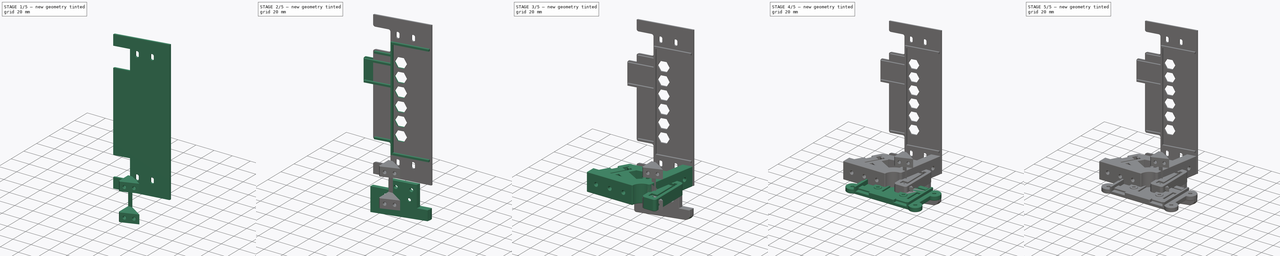
[diagram: build sequence overview — one tinted view per stage of 5, left to right]
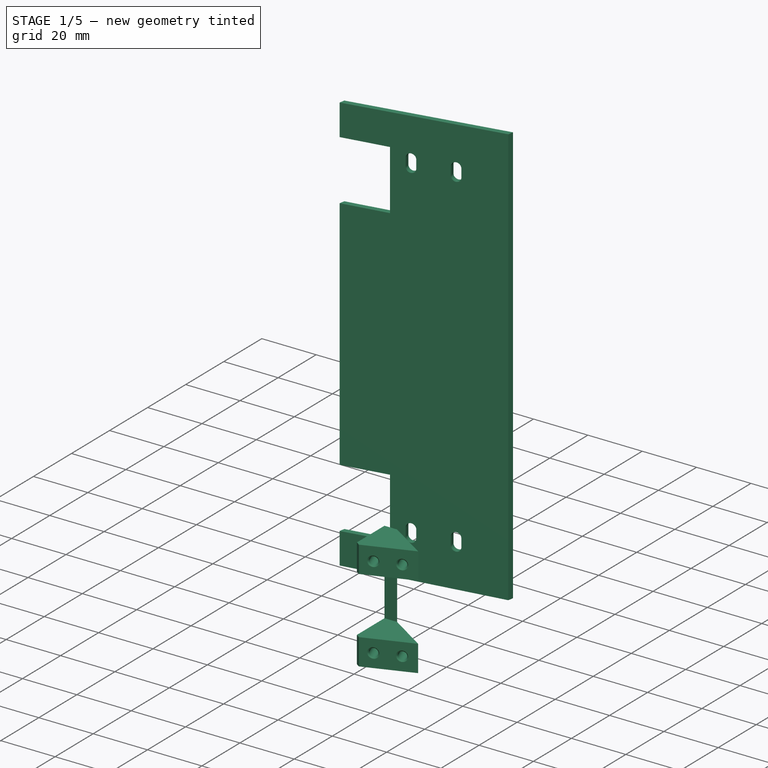
[diagram: stage 1 of 5 — iso view after this stage's code; geometry added in this stage tinted green]
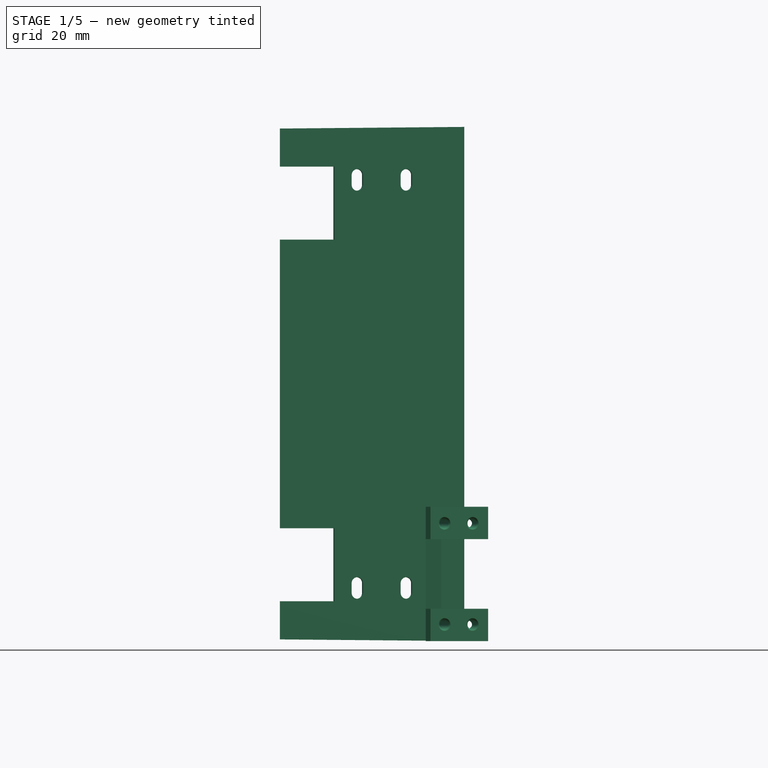
[diagram: stage 1 of 5 — front view after this stage's code; geometry added in this stage tinted green]
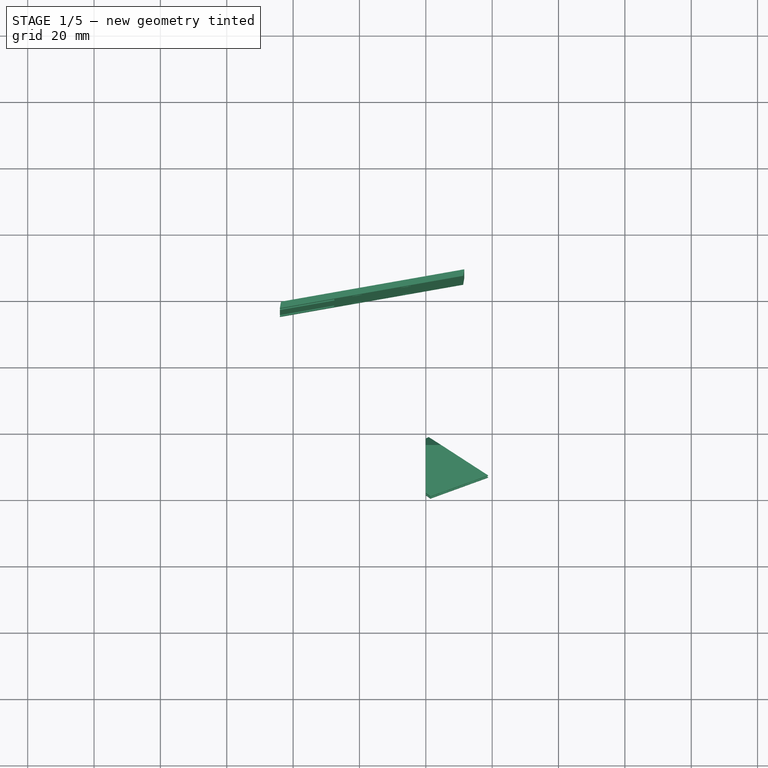
[diagram: stage 1 of 5 — top view after this stage's code; geometry added in this stage tinted green]
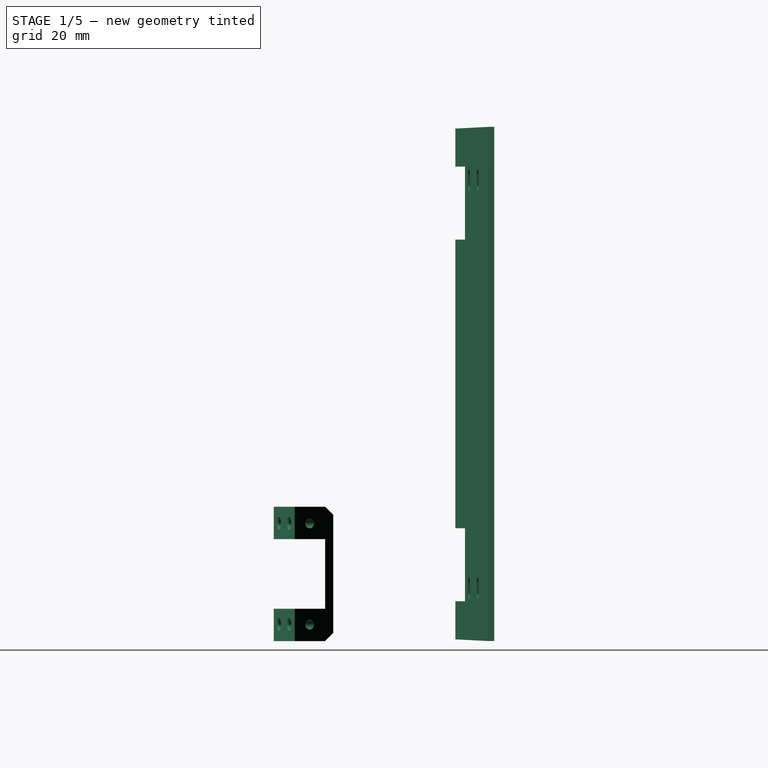
[diagram: stage 1 of 5 — right view after this stage's code; geometry added in this stage tinted green]
FCSTD DOCUMENT  (FreeCAD 0.19R24291 (Git))
Label: din-tray
License: Other
LicenseURL: GPL3
objects: Sketcher::SketchObject×32, PartDesign::Pocket×18, PartDesign::Pad×14, PartDesign::Chamfer×14, PartDesign::Body×10, PartDesign::Fillet×9, Part::Feature×6, Spreadsheet::Sheet×1, Part::MultiFuse×1, PartDesign::LinearPattern×1, PartDesign::Plane×1
note: 161 computed .brp shape members not serialized (recipe doc carries the construction recipe); baked Part::Feature solids carry a one-line shape summary decoded from their .brp

FEATURE [PartDesign::Body] Body004007  label="side-lid"
  Group = -> [Sketch016,Pad009,Sketch017,Pocket007,Sketch018,Pocket008,Sketch019,Pocket009,Sketch020,Pocket010,Fillet006,Fillet007,Chamfer010]
  Origin = -> Origin007
  Placement = pos=(0,0,22) rot=(0,0,1;0rad)
  Tip = -> Chamfer010
FEATURE [Sketcher::SketchObject] Sketch021
  FullyConstrained = true
  MapMode = 5
  Support = -> [XY_Plane008]
  sketch-geometry (4):
    g0: LineSegment StartX=-44 StartY=55.2579 StartZ=0 EndX=11.25 EndY=65 EndZ=0
    g1: LineSegment StartX=11.25 StartY=65 StartZ=0 EndX=11.5973 EndY=66.9696 EndZ=0
    g2: LineSegment StartX=11.5973 StartY=66.9696 StartZ=0 EndX=-43.6527 EndY=57.2275 EndZ=0
    g3: LineSegment StartX=-43.6527 StartY=57.2275 StartZ=0 EndX=-44 EndY=55.2579 EndZ=0
  constraints (12):
    c: Coincident(g0,g1)
    c: Coincident(g1,g2)
    c: Coincident(g2,g3)
    c: Coincident(g3,g0)
    c: Angle(g-1,g1) = 1.39626
    c: Angle(g-1,g0) = 0.174533
    c: Parallel(g2,g0)
    c: Parallel(g3,g1)
    c: DistanceX(g-1,g0) = 11.25
    c: DistanceY(g-1,g0) = 65
    c: Distance(g3) = 2
    c: DistanceX(g0,g-1) = 44
FEATURE [PartDesign::Pad] Pad010
  Direction = (1,1,1)
  Length = 155
  Length2 = 100
  Profile = -> Sketch021
  Type = 0
  expr: Length = <<args>>.lid_width
FEATURE [Sketcher::SketchObject] Sketch022
  FullyConstrained = true
  MapMode = 5
  Placement = pos=(-11.1028,62.967,0) rot=(-0.061746,0.705758,0.705758;3.26493rad)
  Support = -> [Pad010]
  expr: Constraints[39] = <<args>>.lid_width - 14.5
  sketch-geometry (16):
    g0: ArcOfCircle CenterX=-5 CenterY=14.5 CenterZ=0 NormalX=0 NormalY=0 NormalZ=1 AngleXU=0 Radius=1.75 StartAngle=3.14159 EndAngle=6.28319
    g1: ArcOfCircle CenterX=-5 CenterY=17.5 CenterZ=0 NormalX=0 NormalY=0 NormalZ=1 AngleXU=0 Radius=1.75 StartAngle=0 EndAngle=3.14159
    g2: LineSegment StartX=-3.25 StartY=14.5 StartZ=0 EndX=-3.25 EndY=17.5 EndZ=0
    g3: LineSegment StartX=-6.75 StartY=14.5 StartZ=0 EndX=-6.75 EndY=17.5 EndZ=0
    g4: ArcOfCircle CenterX=10 CenterY=14.5 CenterZ=0 NormalX=0 NormalY=0 NormalZ=1 AngleXU=0 Radius=1.75 StartAngle=3.14159 EndAngle=6.28319
    g5: ArcOfCircle CenterX=10 CenterY=17.5 CenterZ=0 NormalX=0 NormalY=0 NormalZ=1 AngleXU=0 Radius=1.75 StartAngle=2e-16 EndAngle=3.14159
    g6: LineSegment StartX=11.75 StartY=14.5 StartZ=0 EndX=11.75 EndY=17.5 EndZ=0
    g7: LineSegment StartX=8.25 StartY=14.5 StartZ=0 EndX=8.25 EndY=17.5 EndZ=0
    g8: ArcOfCircle CenterX=-5 CenterY=140.5 CenterZ=0 NormalX=0 NormalY=0 NormalZ=1 AngleXU=0 Radius=1.75 StartAngle=6.2e-15 EndAngle=3.14159
    g9: ArcOfCircle CenterX=-5 CenterY=137.5 CenterZ=0 NormalX=0 NormalY=0 NormalZ=1 AngleXU=0 Radius=1.75 StartAngle=3.14159 EndAngle=6.28319
    g10: LineSegment StartX=-6.75 StartY=140.5 StartZ=0 EndX=-6.75 EndY=137.5 EndZ=0
    g11: LineSegment StartX=-3.25 StartY=140.5 StartZ=0 EndX=-3.25 EndY=137.5 EndZ=0
    g12: ArcOfCircle CenterX=10 CenterY=140.5 CenterZ=0 NormalX=0 NormalY=0 NormalZ=1 AngleXU=0 Radius=1.75 StartAngle=-7.1e-15 EndAngle=3.14159
    g13: ArcOfCircle CenterX=10 CenterY=137.5 CenterZ=0 NormalX=0 NormalY=0 NormalZ=1 AngleXU=0 Radius=1.75 StartAngle=3.14159 EndAngle=6.28319
    g14: LineSegment StartX=8.25 StartY=140.5 StartZ=0 EndX=8.25 EndY=137.5 EndZ=0
    g15: LineSegment StartX=11.75 StartY=140.5 StartZ=0 EndX=11.75 EndY=137.5 EndZ=0
  constraints (40):
    c: Tangent(g0,g3) = 1.5708
    c: Tangent(g0,g2) = -1.5708
    c: Tangent(g2,g1) = -1.5708
    c: Tangent(g3,g1) = 1.5708
    c: Vertical(g2)
    c: Equal(g0,g1)
    c: Tangent(g4,g7) = 1.5708
    c: Tangent(g4,g6) = -1.5708
    c: Tangent(g6,g5) = -1.5708
    c: Tangent(g7,g5) = 1.5708
    c: Vertical(g6)
    c: Equal(g4,g5)
    c: Tangent(g8,g11) = 1.5708
    c: Tangent(g8,g10) = -1.5708
    c: Tangent(g10,g9) = -1.5708
    c: Tangent(g11,g9) = 1.5708
    c: Vertical(g10)
    c: Equal(g8,g9)
    c: Tangent(g12,g15) = 1.5708
    c: Tangent(g12,g14) = -1.5708
    c: Tangent(g14,g13) = -1.5708
    c: Tangent(g15,g13) = 1.5708
    c: Vertical(g14)
    c: Equal(g12,g13)
    c: Horizontal(g0,g4)
    c: Horizontal(g1,g5)
    c: Horizontal(g9,g13)
    c: Horizontal(g8,g12)
    c: Vertical(g1,g9)
    c: Vertical(g13,g5)
    c: DistanceX(g0,g-1) = 5
    c: DistanceX(g-1,g4) = 10
    c: DistanceY(g0,g1) = 3
    c: DistanceY(g9,g8) = 3
    c: Radius(g1) = 1.75
    c: Radius(g5) = 1.75
    c: Radius(g8) = 1.75
    c: Radius(g12) = 1.75
    c: DistanceY(g-1,g0) = 14.5
    c: DistanceY(g-1,g8) = 140.5
FEATURE [PartDesign::Pocket] Pocket011
  BaseFeature = -> Pad010
  Length = 5
  Length2 = 100
  Profile = -> Sketch022
  Type = 1
FEATURE [Sketcher::SketchObject] Sketch023
  FullyConstrained = true
  MapMode = 5
  Placement = pos=(-11.1028,62.967,0) rot=(-0.061746,0.705758,0.705758;3.26493rad)
  Support = -> [Pocket011]
  expr: Constraints[15] = <<args>>.lid_width
  expr: Constraints[14] = <<args>>.lid_right_angle
  expr: Constraints[6] = <<args>>.lid_left_angle
  sketch-geometry (6):
    g0: LineSegment StartX=-25 StartY=0 StartZ=0 EndX=35 EndY=0.523612 EndZ=0
    g1: LineSegment StartX=35 StartY=0.523612 StartZ=0 EndX=35 EndY=0 EndZ=0
    g2: LineSegment StartX=35 StartY=0 StartZ=0 EndX=-25 EndY=0 EndZ=0
    g3: LineSegment StartX=-25 StartY=155 StartZ=0 EndX=35 EndY=155 EndZ=0
    g4: LineSegment StartX=35 StartY=155 StartZ=0 EndX=35 EndY=154.476 EndZ=0
    g5: LineSegment StartX=35 StartY=154.476 StartZ=0 EndX=-25 EndY=155 EndZ=0
  constraints (18):
    c: Coincident(g0,g1)
    c: Coincident(g1,g2)
    c: Coincident(g2,g0)
    c: Vertical(g1)
    c: Horizontal(g2)
    c: DistanceX(g0,g-1) = 25
    c: Angle(g2,g0) = 0.00872665
    c: DistanceY(g0,g-1) = 0
    c: DistanceX(g-1,g1) = 35
    c: Coincident(g3,g4)
    c: Coincident(g4,g5)
    c: Coincident(g5,g3)
    c: Horizontal(g3)
    c: Vertical(g4)
    c: Angle(g5,g3) = 0.00872665
    c: DistanceY(g0,g3) = 155
    c: DistanceX(g3,g-1) = 25
    c: DistanceX(g-1,g4) = 35
FEATURE [PartDesign::Pocket] Pocket012
  BaseFeature = -> Pocket011
  Length = 5
  Length2 = 100
  Profile = -> Sketch023
  Type = 0
FEATURE [Sketcher::SketchObject] Sketch024
  FullyConstrained = true
  MapMode = 5
  Placement = pos=(-11.1028,62.967,0) rot=(-0.061746,0.705758,0.705758;3.26493rad)
  Support = -> [Pocket012]
  expr: Constraints[10] = <<args>>.lid_width - 12
  sketch-geometry (8):
    g0: LineSegment StartX=34 StartY=12 StartZ=0 EndX=17 EndY=12 EndZ=0
    g1: LineSegment StartX=17 StartY=12 StartZ=0 EndX=17 EndY=34 EndZ=0
    g2: LineSegment StartX=17 StartY=121 StartZ=0 EndX=17 EndY=143 EndZ=0
    g3: LineSegment StartX=17 StartY=143 StartZ=0 EndX=34 EndY=143 EndZ=0
    g4: LineSegment StartX=17 StartY=34 StartZ=0 EndX=34 EndY=34 EndZ=0
    g5: LineSegment StartX=34 StartY=34 StartZ=0 EndX=34 EndY=12 EndZ=0
    g6: LineSegment StartX=17 StartY=121 StartZ=0 EndX=34 EndY=121 EndZ=0
    g7: LineSegment StartX=34 StartY=121 StartZ=0 EndX=34 EndY=143 EndZ=0
  constraints (24):
    c: Horizontal(g0)
    c: Coincident(g0,g1)
    c: Vertical(g1)
    c: Vertical(g2)
    c: Coincident(g2,g3)
    c: Horizontal(g3)
    c: DistanceX(g-1,g0) = 17
    c: Vertical(g1,g2)
    c: DistanceY(g1,g1) = 22
    c: DistanceY(g-1,g0) = 12
    c: DistanceY(g-1,g2) = 143
    c: DistanceY(g2,g2) = 22
    c: DistanceX(g-1,g0) = 34
    c: Coincident(g1,g4)
    c: Horizontal(g4)
    c: Coincident(g4,g5)
    c: Coincident(g5,g0)
    c: Vertical(g5)
    c: Coincident(g2,g6)
    c: Horizontal(g6)
    c: Coincident(g6,g7)
    c: Coincident(g7,g3)
    c: Vertical(g7)
    c: Vertical(g6,g4)
FEATURE [PartDesign::Pocket] Pocket013
  BaseFeature = -> Pocket012
  Length = 5
  Length2 = 100
  Profile = -> Sketch024
  Type = 0
FEATURE [PartDesign::Body] Body004008  label="top-lid"
  Group = -> [Sketch021,Pad010,Sketch022,Pocket011,Sketch023,Pocket012,Sketch024,Pocket013,Fillet008,Sketch025,Pad011,Fillet009,Sketch026,Pad012,Sketch028,Pocket016,LinearPattern001,Chamfer011]
  Origin = -> Origin008
  Tip = -> Chamfer011
FEATURE [Sketcher::SketchObject] Sketch029
  FullyConstrained = true
  MapMode = 5
  Support = -> [XY_Plane009]
  sketch-geometry (3):
    g0: LineSegment StartX=0 StartY=0 StartZ=0 EndX=0 EndY=19 EndZ=0
    g1: LineSegment StartX=0 StartY=0 StartZ=0 EndX=18.7939 EndY=6.8404 EndZ=0
    g2: LineSegment StartX=0 StartY=19 StartZ=0 EndX=18.7939 EndY=6.8404 EndZ=0
  constraints (8):
    c: Coincident(g0,g-1)
    c: PointOnObject(g0,g-2)
    c: Coincident(g1,g0)
    c: Coincident(g2,g0)
    c: Coincident(g2,g1)
    c: DistanceY(g0,g0) = 19
    c: Distance(g1) = 20
    c: Angle(g1,g0) = 1.22173
FEATURE [PartDesign::Pad] Pad013
  Direction = (1,1,1)
  Length = 40.5
  Length2 = 100
  Profile = -> Sketch029
  Type = 0
  expr: Length = 20.5 + 20
FEATURE [PartDesign::Chamfer] Chamfer012
  Angle = 45
  Base = -> Pad013 [Edge1]
  BaseFeature = -> Pad013
  ChamferType = 0
  FlipDirection = false
  Size = 1.5
  Size2 = 1
  SupportTransform = false
FEATURE [PartDesign::Plane] DatumPlane
  AttachmentOffset = pos=(0,0,9.75) rot=(0,0,1;0rad)
  Length = 60
  MapMode = 5
  Placement = pos=(0,0,9.75) rot=(0,0,1;0rad)
  ResizeMode = 0
  Support = -> [XY_Plane009]
  Width = 60
FEATURE [Sketcher::SketchObject] Sketch030
  FullyConstrained = true
  MapMode = 5
  Placement = pos=(0,0,9.75) rot=(0,0,1;0rad)
  Support = -> [DatumPlane]
  sketch-geometry (4):
    g0: LineSegment StartX=0 StartY=0 StartZ=0 EndX=0 EndY=16 EndZ=0
    g1: LineSegment StartX=18.7939 StartY=6.8404 StartZ=0 EndX=0 EndY=0 EndZ=0
    g2: LineSegment StartX=0 StartY=16 StartZ=0 EndX=18.7939 EndY=16 EndZ=0
    g3: LineSegment StartX=18.7939 StartY=16 StartZ=0 EndX=18.7939 EndY=6.8404 EndZ=0
  constraints (11):
    c: Coincident(g-1,g0)
    c: Vertical(g0)
    c: Coincident(g1,g0)
    c: Angle(g1,g0) = 1.22173
    c: Distance(g1) = 20
    c: Coincident(g0,g2)
    c: Horizontal(g2)
    c: Coincident(g2,g3)
    c: Coincident(g3,g1)
    c: Vertical(g3)
    c: DistanceY(g0,g0) = 16
FEATURE [PartDesign::Pocket] Pocket017
  BaseFeature = -> Chamfer012
  Length = 21
  Length2 = 100
  Profile = -> Sketch030
  Reversed = true
  Type = 0
FEATURE [Sketcher::SketchObject] Sketch031
  FullyConstrained = true
  MapMode = 5
  Placement = pos=(0,0,0) rot=(0.970288,0.171088,0.171088;1.60095rad)
  Support = -> [Pocket017]
  sketch-geometry (4):
    g0: Circle CenterX=6 CenterY=5 CenterZ=0 NormalX=0 NormalY=0 NormalZ=1 AngleXU=0 Radius=1.5
    g1: Circle CenterX=6 CenterY=35.5 CenterZ=0 NormalX=0 NormalY=0 NormalZ=1 AngleXU=0 Radius=1.5
    g2: Circle CenterX=15 CenterY=35.5 CenterZ=0 NormalX=0 NormalY=0 NormalZ=1 AngleXU=0 Radius=1.5
    g3: Circle CenterX=15 CenterY=5 CenterZ=0 NormalX=0 NormalY=0 NormalZ=1 AngleXU=0 Radius=1.5
  constraints (12):
    c: Vertical(g1,g0)
    c: DistanceY(g-1,g0) = 5
    c: DistanceY(g0,g1) = 30.5
    c: Radius(g1) = 1.5
    c: Radius(g0) = 1.5
    c: DistanceX(g-1,g0) = 6
    c: Vertical(g3,g2)
    c: Horizontal(g0,g3)
    c: Horizontal(g2,g1)
    c: Radius(g2) = 1.5
    c: Radius(g3) = 1.5
    c: DistanceX(g1,g2) = 9
FEATURE [PartDesign::Pocket] Pocket018
  BaseFeature = -> Pocket017
  Length = 10
  Length2 = 100
  Profile = -> Sketch031
  Type = 0
FEATURE [Sketcher::SketchObject] Sketch032
  FullyConstrained = false
  MapMode = 5
  Placement = pos=(0,0,0) rot=(0.57735,-0.57735,-0.57735;2.0944rad)
  Support = -> [Pocket018]
  sketch-geometry (6):
    g0: LineSegment StartX=-19 StartY=3 StartZ=0 EndX=-19 EndY=0 EndZ=0
    g1: LineSegment StartX=-19 StartY=0 StartZ=0 EndX=-16 EndY=0 EndZ=0
    g2: LineSegment StartX=-16 StartY=0 StartZ=0 EndX=-19 EndY=3 EndZ=0
    g3: LineSegment StartX=-16 StartY=40.5 StartZ=0 EndX=-19 EndY=40.5 EndZ=0
    g4: LineSegment StartX=-19 StartY=40.5 StartZ=0 EndX=-19 EndY=37.5 EndZ=0
    g5: LineSegment StartX=-19 StartY=37.5 StartZ=0 EndX=-16 EndY=40.5 EndZ=0
  constraints (11):
    c: PointOnObject(g0,g-1)
    c: Vertical(g0)
    c: Coincident(g0,g1)
    c: Horizontal(g1)
    c: Coincident(g1,g2)
    c: Coincident(g2,g0)
    c: Horizontal(g3)
    c: Coincident(g3,g4)
    c: Vertical(g4)
    c: Coincident(g4,g5)
    c: Coincident(g5,g3)
FEATURE [PartDesign::Pocket] Pocket019
  BaseFeature = -> Pocket018
  Length = 5
  Length2 = 100
  Profile = -> Sketch032
  Type = 1
FEATURE [PartDesign::Chamfer] Chamfer013
  Angle = 45
  Base = -> Pocket019 [Edge3]
  BaseFeature = -> Pocket019
  ChamferType = 0
  FlipDirection = false
  Size = 1
  Size2 = 1
  SupportTransform = false
FEATURE [PartDesign::Chamfer] Chamfer014
  Angle = 45
  Base = -> Chamfer013 [Edge39,Edge40,Edge41,Edge42]
  BaseFeature = -> Chamfer013
  ChamferType = 0
  FlipDirection = false
  Size = 0.4
  Size2 = 1
  SupportTransform = false
FEATURE [PartDesign::Body] Body004009  label="hook"
  Group = -> [Sketch029,Pad013,Chamfer012,DatumPlane,Sketch030,Pocket017,Sketch031,Pocket018,Sketch032,Pocket019,Chamfer013,Chamfer014]
  Origin = -> Origin009
  Tip = -> Chamfer014
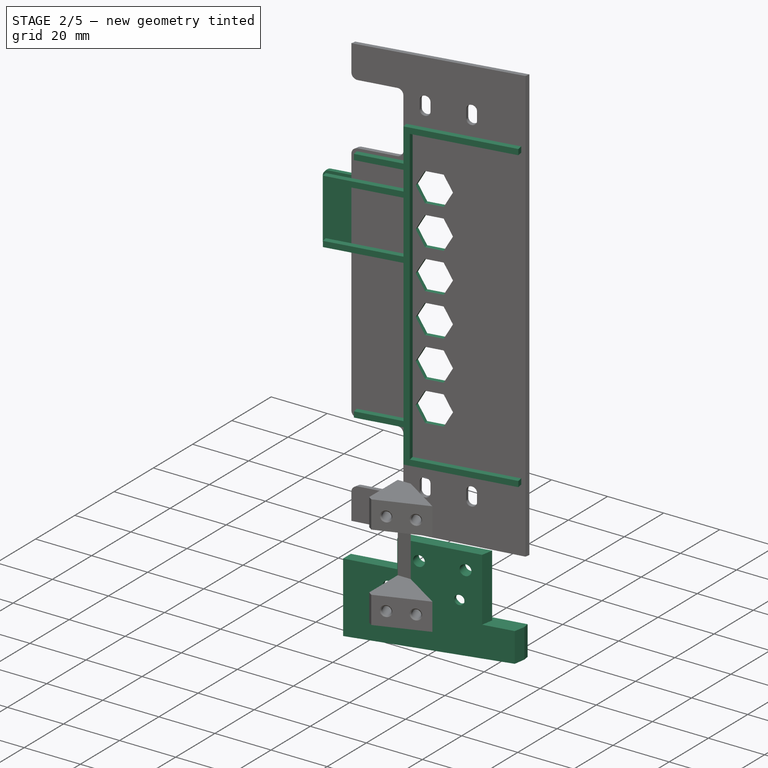
[diagram: stage 2 of 5 — iso view after this stage's code; geometry added in this stage tinted green]
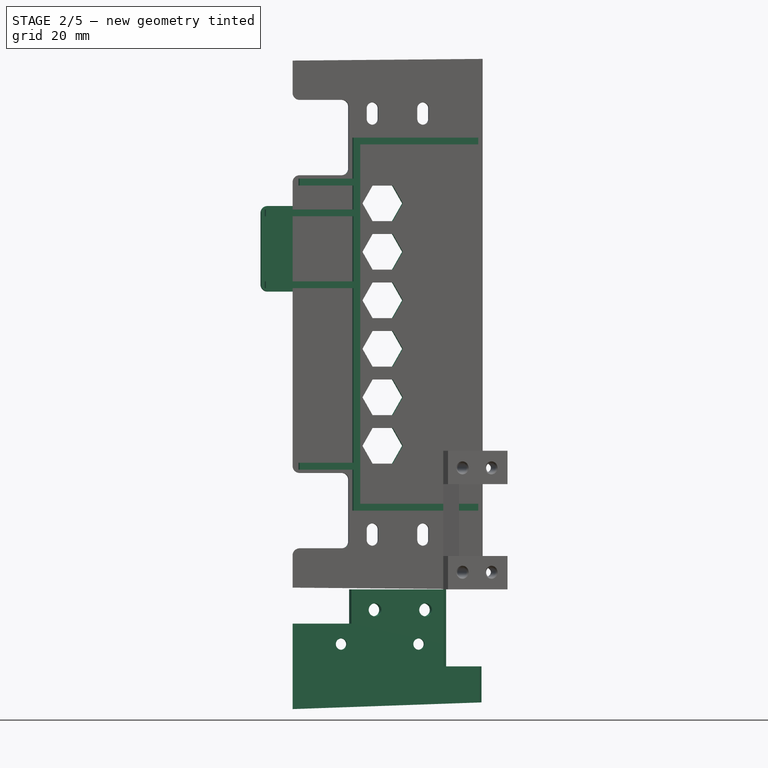
[diagram: stage 2 of 5 — front view after this stage's code; geometry added in this stage tinted green]
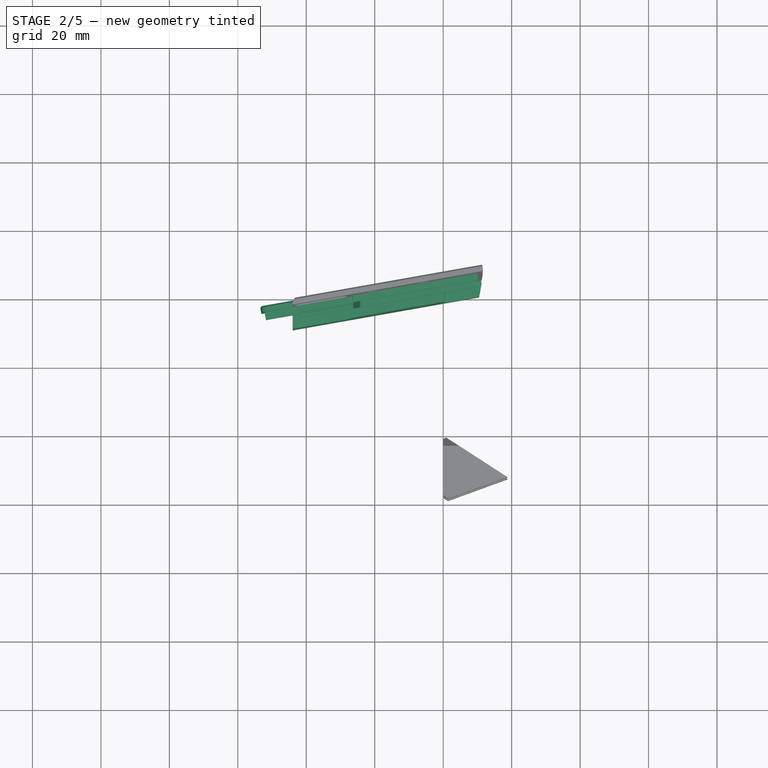
[diagram: stage 2 of 5 — top view after this stage's code; geometry added in this stage tinted green]
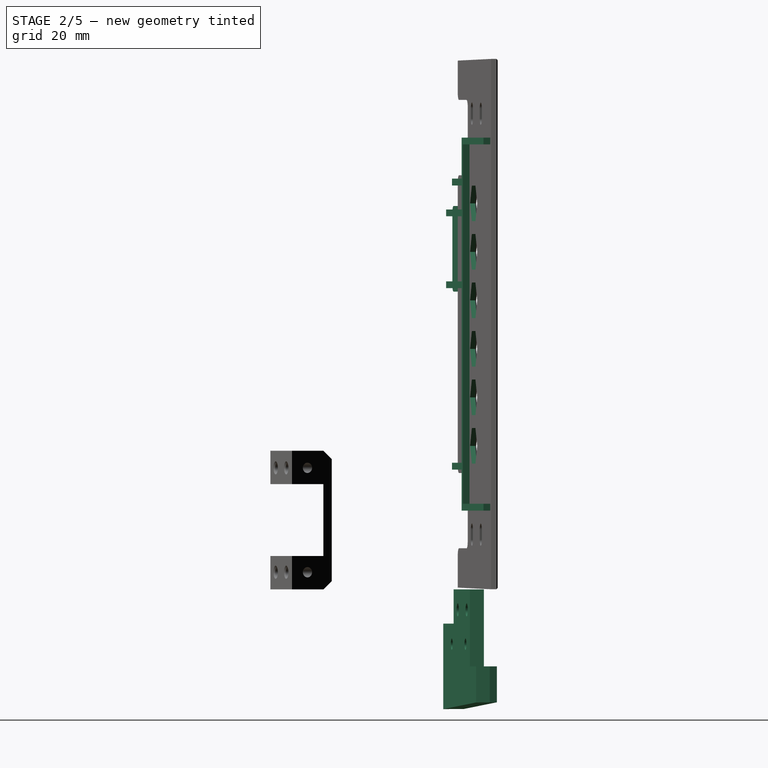
[diagram: stage 2 of 5 — right view after this stage's code; geometry added in this stage tinted green]
FEATURE [Sketcher::SketchObject] Sketch016
  FullyConstrained = true
  MapMode = 5
  Support = -> [XY_Plane007]
  sketch-geometry (4):
    g0: LineSegment StartX=-44 StartY=51 StartZ=0 EndX=10.5 EndY=60.6098 EndZ=0
    g1: LineSegment StartX=10.5 StartY=60.6098 StartZ=0 EndX=11.5919 EndY=66.8024 EndZ=0
    g2: LineSegment StartX=11.5919 StartY=66.8024 StartZ=0 EndX=-44 EndY=57 EndZ=0
    g3: LineSegment StartX=-44 StartY=57 StartZ=0 EndX=-44 EndY=51 EndZ=0
  constraints (12):
    c: Coincident(g1,g0)
    c: Coincident(g2,g1)
    c: Coincident(g3,g2)
    c: Coincident(g3,g0)
    c: Parallel(g2,g0)
    c: Angle(g-1,g1) = 1.39626
    c: Angle(g-1,g0) = 0.174533
    c: Vertical(g3)
    c: DistanceX(g0,g-1) = 44
    c: DistanceX(g-1,g0) = 10.5
    c: DistanceY(g3,g3) = 6
    c: DistanceY(g-1,g0) = 51
FEATURE [PartDesign::Pad] Pad009
  Direction = (1,1,1)
  Length = 35
  Length2 = 100
  Profile = -> Sketch016
  Reversed = true
  Type = 0
FEATURE [Sketcher::SketchObject] Sketch017
  FullyConstrained = true
  MapMode = 5
  Support = -> [Pad009]
  sketch-geometry (4):
    g0: LineSegment StartX=1.24494 StartY=65.0604 StartZ=0 EndX=0 EndY=58 EndZ=0
    g1: LineSegment StartX=0 StartY=58 StartZ=0 EndX=11 EndY=59.9396 EndZ=0
    g2: LineSegment StartX=11 StartY=59.9396 StartZ=0 EndX=12.2449 EndY=67 EndZ=0
    g3: LineSegment StartX=12.2449 StartY=67 StartZ=0 EndX=1.24494 EndY=65.0604 EndZ=0
  constraints (12):
    c: Coincident(g0,g1)
    c: Coincident(g1,g2)
    c: Coincident(g2,g3)
    c: Coincident(g3,g0)
    c: Parallel(g3,g1)
    c: Parallel(g0,g2)
    c: Angle(g-1,g1) = 0.174533
    c: Angle(g-1,g2) = 1.39626
    c: DistanceX(g-1,g0) = 0
    c: DistanceX(g-1,g1) = 11
    c: DistanceY(g-1,g0) = 58
    c: DistanceY(g-1,g2) = 67
FEATURE [PartDesign::Pocket] Pocket007
  BaseFeature = -> Pad009
  Length = 22.5
  Length2 = 100
  Profile = -> Sketch017
  Type = 0
FEATURE [Sketcher::SketchObject] Sketch018
  FullyConstrained = true
  MapMode = 5
  Placement = pos=(-11.0743,62.8057,0) rot=(-0.061746,0.705758,0.705758;3.26493rad)
  Support = -> [Pocket007]
  expr: Constraints[22] = <<args>>.thread_insert_radius
  expr: Constraints[23] = <<args>>.thread_insert_radius
  sketch-geometry (13):
    g0: Circle CenterX=-3 CenterY=-16 CenterZ=0 NormalX=0 NormalY=0 NormalZ=1 AngleXU=0 Radius=1.65
    g1: Circle CenterX=20 CenterY=-16 CenterZ=0 NormalX=0 NormalY=0 NormalZ=1 AngleXU=0 Radius=1.65
    g2: LineSegment StartX=-24 StartY=-22 StartZ=0 EndX=-24 EndY=-35 EndZ=0
    g3: LineSegment StartX=17 StartY=0 StartZ=0 EndX=35 EndY=0 EndZ=0
    g4: LineSegment StartX=35 StartY=0 StartZ=0 EndX=35 EndY=-10 EndZ=0
    g5: LineSegment StartX=35 StartY=-10 StartZ=0 EndX=17 EndY=-10 EndZ=0
    g6: LineSegment StartX=17 StartY=-10 StartZ=0 EndX=17 EndY=0 EndZ=0
    g7: Circle CenterX=-5 CenterY=-6 CenterZ=0 NormalX=0 NormalY=0 NormalZ=1 AngleXU=0 Radius=1.9
    g8: Circle CenterX=10 CenterY=-6 CenterZ=0 NormalX=0 NormalY=0 NormalZ=1 AngleXU=0 Radius=1.9
    g9: LineSegment StartX=-24 StartY=-22 StartZ=0 EndX=-22.25 EndY=-22 EndZ=0
    g10: LineSegment StartX=-22.25 StartY=-22 StartZ=0 EndX=-22.25 EndY=-33 EndZ=0
    g11: LineSegment StartX=-22.25 StartY=-33 StartZ=0 EndX=35 EndY=-35 EndZ=0
    g12: LineSegment StartX=-24 StartY=-35 StartZ=0 EndX=35 EndY=-35 EndZ=0
  constraints (39):
    c: Horizontal(g1,g0)
    c: Radius(g0) = 1.65
    c: Radius(g1) = 1.65
    c: DistanceY(g0,g-1) = 16
    c: DistanceX(g0,g-1) = 3
    c: DistanceX(g-1,g1) = 20
    c: Vertical(g2)
    c: Coincident(g3,g4)
    c: Coincident(g4,g5)
    c: Coincident(g5,g6)
    c: Coincident(g6,g3)
    c: Horizontal(g3)
    c: Horizontal(g5)
    c: Vertical(g4)
    c: Vertical(g6)
    c: DistanceX(g2,g-1) = 24
    c: DistanceX(g-1,g11) = 35
    c: DistanceX(g3,g3) = 18
    c: DistanceX(g-1,g3) = 17
    c: DistanceY(g6,g6) = 10
    c: DistanceY(g3,g-1) = 0
    c: Horizontal(g8,g7)
    c: Radius(g7) = 1.9
    c: Radius(g8) = 1.9
    c: DistanceY(g7,g-1) = 6
    c: DistanceX(g-1,g8) = 10
    c: DistanceX(g7,g-1) = 5
    c: Coincident(g2,g9)
    c: Horizontal(g9)
    c: Coincident(g9,g10)
    c: Vertical(g10)
    c: Coincident(g10,g11)
    c: DistanceY(g2,g2) = 13
    c: DistanceY(g2,g-1) = 22
    c: DistanceY(g10,g10) = 11
    c: DistanceX(g9,g9) = 1.75
    c: Coincident(g12,g2)
    c: Coincident(g12,g11)
    c: Horizontal(g12)
FEATURE [PartDesign::Pocket] Pocket008
  BaseFeature = -> Pocket007
  Length = 5
  Length2 = 100
  Profile = -> Sketch018
  Type = 1
FEATURE [Sketcher::SketchObject] Sketch019
  FullyConstrained = true
  MapMode = 5
  Placement = pos=(-11.0743,62.8057,0) rot=(-0.061746,0.705758,0.705758;3.26493rad)
  Support = -> [Pocket008]
  sketch-geometry (2):
    g0: Circle CenterX=-3 CenterY=-16 CenterZ=0 NormalX=0 NormalY=0 NormalZ=1 AngleXU=0 Radius=3.2
    g1: Circle CenterX=20 CenterY=-16 CenterZ=0 NormalX=0 NormalY=0 NormalZ=1 AngleXU=0 Radius=3.2
  constraints (6):
    c: Horizontal(g1,g0)
    c: Radius(g0) = 3.2
    c: Radius(g1) = 3.2
    c: DistanceY(g0,g-1) = 16
    c: DistanceX(g0,g-1) = 3
    c: DistanceX(g-1,g1) = 20
FEATURE [PartDesign::Pocket] Pocket009
  BaseFeature = -> Pocket008
  Length = 4.5
  Length2 = 100
  Profile = -> Sketch019
  Type = 0
FEATURE [Sketcher::SketchObject] Sketch020
  FullyConstrained = true
  MapMode = 5
  Placement = pos=(-11.0743,62.8057,0) rot=(-0.061746,0.705758,0.705758;3.26493rad)
  Support = -> [Pocket009]
  sketch-geometry (4):
    g0: LineSegment StartX=-25 StartY=0 StartZ=0 EndX=35 EndY=0 EndZ=0
    g1: LineSegment StartX=35 StartY=0 StartZ=0 EndX=35 EndY=-22.5 EndZ=0
    g2: LineSegment StartX=35 StartY=-22.5 StartZ=0 EndX=-25 EndY=-22.5 EndZ=0
    g3: LineSegment StartX=-25 StartY=-22.5 StartZ=0 EndX=-25 EndY=0 EndZ=0
  constraints (12):
    c: Coincident(g0,g1)
    c: Coincident(g1,g2)
    c: Coincident(g2,g3)
    c: Coincident(g3,g0)
    c: Horizontal(g0)
    c: Horizontal(g2)
    c: Vertical(g1)
    c: Vertical(g3)
    c: DistanceY(g2,g-1) = 22.5
    c: DistanceY(g-1,g0) = 0
    c: DistanceX(g0,g-1) = 25
    c: DistanceX(g-1,g0) = 35
FEATURE [PartDesign::Pocket] Pocket010
  BaseFeature = -> Pocket009
  Length = 2
  Length2 = 100
  Profile = -> Sketch020
  Type = 0
FEATURE [PartDesign::Fillet] Fillet008
  Base = -> Pocket013 [Edge49,Edge47,Edge45,Edge43,Edge41,Edge39,Edge37,Edge35]
  BaseFeature = -> Pocket013
  Radius = 2
  SupportTransform = false
FEATURE [Sketcher::SketchObject] Sketch025
  FullyConstrained = false
  MapMode = 5
  Placement = pos=(-11.1028,62.967,0) rot=(-0.061746,0.705758,0.705758;3.26493rad)
  Support = -> [Fillet008]
  sketch-geometry (4):
    g0: LineSegment StartX=32 StartY=112 StartZ=0 EndX=43 EndY=112 EndZ=0
    g1: LineSegment StartX=43 StartY=112 StartZ=0 EndX=43 EndY=87 EndZ=0
    g2: LineSegment StartX=43 StartY=87 StartZ=0 EndX=32 EndY=87 EndZ=0
    g3: LineSegment StartX=32 StartY=87 StartZ=0 EndX=32 EndY=112 EndZ=0
  constraints (10):
    c: Coincident(g0,g1)
    c: Coincident(g1,g2)
    c: Coincident(g2,g3)
    c: Coincident(g3,g0)
    c: Horizontal(g0)
    c: Horizontal(g2)
    c: Vertical(g1)
    c: Vertical(g3)
    c: DistanceX(g0,g0) = 11
    c: DistanceY(g3,g3) = 25
FEATURE [PartDesign::Pad] Pad011
  BaseFeature = -> Fillet008
  Direction = (1,1,1)
  Length = 1.85
  Length2 = 100
  Profile = -> Sketch025
  Reversed = true
  Type = 0
FEATURE [PartDesign::Fillet] Fillet009
  Base = -> Pad011 [Edge122,Edge117]
  BaseFeature = -> Pad011
  Radius = 2
  SupportTransform = false
FEATURE [Sketcher::SketchObject] Sketch026
  FullyConstrained = true
  MapMode = 5
  Placement = pos=(-10.7764,61.1161,0) rot=(0.992433,0.086827,0.086827;1.57839rad)
  Support = -> [Fillet009]
  expr: Constraints[7] = <<args>>.lid_width - 23
  sketch-geometry (24):
    g0: LineSegment StartX=-16 StartY=23 StartZ=0 EndX=21 EndY=23 EndZ=0
    g1: LineSegment StartX=-16 StartY=132 StartZ=0 EndX=21 EndY=132 EndZ=0
    g2: LineSegment StartX=21 StartY=25 StartZ=0 EndX=-14 EndY=25 EndZ=0
    g3: LineSegment StartX=21 StartY=132 StartZ=0 EndX=21 EndY=130 EndZ=0
    g4: LineSegment StartX=21 StartY=25 StartZ=0 EndX=21 EndY=23 EndZ=0
    g5: LineSegment StartX=21 StartY=130 StartZ=0 EndX=-14 EndY=130 EndZ=0
    g6: LineSegment StartX=-14 StartY=130 StartZ=0 EndX=-14 EndY=25 EndZ=0
    g7: LineSegment StartX=-16 StartY=132 StartZ=0 EndX=-16 EndY=120 EndZ=0
    g8: LineSegment StartX=-16 StartY=120 StartZ=0 EndX=-32 EndY=120 EndZ=0
    g9: LineSegment StartX=-32 StartY=120 StartZ=0 EndX=-32 EndY=118 EndZ=0
    g10: LineSegment StartX=-32 StartY=118 StartZ=0 EndX=-16 EndY=118 EndZ=0
    g11: LineSegment StartX=-16 StartY=23 StartZ=0 EndX=-16 EndY=35 EndZ=0
    g12: LineSegment StartX=-16 StartY=35 StartZ=0 EndX=-32 EndY=35 EndZ=0
    g13: LineSegment StartX=-32 StartY=35 StartZ=0 EndX=-32 EndY=37 EndZ=0
    g14: LineSegment StartX=-32 StartY=37 StartZ=0 EndX=-16 EndY=37 EndZ=0
    g15: LineSegment StartX=-16 StartY=118 StartZ=0 EndX=-16 EndY=111 EndZ=0
    g16: LineSegment StartX=-16 StartY=111 StartZ=0 EndX=-42 EndY=111 EndZ=0
    g17: LineSegment StartX=-42 StartY=111 StartZ=0 EndX=-42 EndY=109 EndZ=0
    g18: LineSegment StartX=-42 StartY=109 StartZ=0 EndX=-16 EndY=109 EndZ=0
    g19: LineSegment StartX=-16 StartY=109 StartZ=0 EndX=-16 EndY=90 EndZ=0
    g20: LineSegment StartX=-16 StartY=90 StartZ=0 EndX=-42 EndY=90 EndZ=0
    g21: LineSegment StartX=-42 StartY=90 StartZ=0 EndX=-42 EndY=88 EndZ=0
    g22: LineSegment StartX=-42 StartY=88 StartZ=0 EndX=-16 EndY=88 EndZ=0
    g23: LineSegment StartX=-16 StartY=88 StartZ=0 EndX=-16 EndY=37 EndZ=0
  constraints (72):
    c: Horizontal(g0)
    c: Horizontal(g1)
    c: Horizontal(g2)
    c: DistanceX(g0,g-1) = 16
    c: DistanceX(g-1,g0) = 21
    c: DistanceY(g0,g2) = 2
    c: DistanceY(g-1,g0) = 23
    c: DistanceY(g-1,g1) = 132
    c: Vertical(g2,g0)
    c: Coincident(g3,g1)
    c: Vertical(g3)
    c: Vertical(g2,g3)
    c: Coincident(g4,g2)
    c: Coincident(g4,g0)
    c: Coincident(g5,g3)
    c: Horizontal(g5)
    c: Coincident(g6,g5)
    c: Coincident(g6,g2)
    c: Vertical(g6)
    c: DistanceX(g0,g2) = 2
    c: DistanceY(g3,g3) = 2
    c: DistanceX(g1,g5) = 2
    c: Coincident(g1,g7)
    c: Vertical(g7)
    c: Coincident(g7,g8)
    c: Horizontal(g8)
    c: Coincident(g8,g9)
    c: Vertical(g9)
    c: Coincident(g9,g10)
    c: Horizontal(g10)
    c: Coincident(g0,g11)
    c: Vertical(g11)
    c: Coincident(g11,g12)
    c: Horizontal(g12)
    c: Coincident(g12,g13)
    c: Vertical(g13)
    c: Coincident(g13,g14)
    c: Horizontal(g14)
    c: Coincident(g10,g15)
    c: Vertical(g15)
    c: Coincident(g15,g16)
    c: Horizontal(g16)
    c: Coincident(g16,g17)
    c: Vertical(g17)
    c: Coincident(g17,g18)
    c: Horizontal(g18)
    c: Coincident(g18,g19)
    c: Vertical(g19)
    c: Coincident(g19,g20)
    c: Horizontal(g20)
    c: Coincident(g20,g21)
    c: Vertical(g21)
    c: Coincident(g21,g22)
    c: Horizontal(g22)
    c: Coincident(g22,g23)
    c: Coincident(g23,g14)
    c: Vertical(g23)
    c: DistanceY(g13,g13) = 2
    c: DistanceY(g11,g11) = 12
    c: DistanceY(g23,g23) = 51
    c: DistanceY(g21,g21) = 2
    c: DistanceY(g19,g19) = 19
    c: DistanceY(g17,g17) = 2
    c: DistanceY(g15,g15) = 7
    c: DistanceY(g9,g9) = 2
    c: Vertical(g17,g20)
    c: Vertical(g9,g13)
    c: DistanceX(g12,g11) = 16
    c: Vertical(g11,g14)
    c: DistanceX(g22,g22) = 26
    c: Vertical(g22,g19)
    c: Vertical(g15,g18)
FEATURE [PartDesign::Pad] Pad012
  BaseFeature = -> Fillet009
  Direction = (1,1,1)
  Length = 2
  Length2 = 100
  Profile = -> Sketch026
  Type = 0
FEATURE [Sketcher::SketchObject] Sketch028
  FullyConstrained = true
  MapMode = 5
  Placement = pos=(-11.1028,62.967,0) rot=(-0.061746,0.705758,0.705758;3.26493rad)
  sketch-geometry (7):
    g0: LineSegment StartX=13 StartY=41.94 StartZ=0 EndX=10 EndY=47.1362 EndZ=0
    g1: LineSegment StartX=10 StartY=47.1362 StartZ=0 EndX=4 EndY=47.1362 EndZ=0
    g2: LineSegment StartX=4 StartY=47.1362 StartZ=0 EndX=1 EndY=41.94 EndZ=0
    g3: LineSegment StartX=1 StartY=41.94 StartZ=0 EndX=4 EndY=36.7438 EndZ=0
    g4: LineSegment StartX=4 StartY=36.7438 StartZ=0 EndX=10 EndY=36.7438 EndZ=0
    g5: LineSegment StartX=10 StartY=36.7438 StartZ=0 EndX=13 EndY=41.94 EndZ=0
    g6: Circle CenterX=7 CenterY=41.94 CenterZ=0 NormalX=0 NormalY=0 NormalZ=1 AngleXU=0 Radius=6
  constraints (17):
    c: Coincident(g0,g1)
    c: Coincident(g1,g2)
    c: Coincident(g2,g3)
    c: Coincident(g3,g4)
    c: Coincident(g4,g5)
    c: Coincident(g5,g0)
    c: Equal(g0, g1-g5) x5
    c: PointOnObject(g0,g6)
    c: PointOnObject(g1,g6)
    c: PointOnObject(g2,g6)
    c: PointOnObject(g3,g6)
    c: PointOnObject(g4,g6)
    c: PointOnObject(g5,g6)
    c: Horizontal(g2,g6)
    c: Radius(g6) = 6
    c: DistanceY(g-1,g6) = 41.94
    c: DistanceX(g6,g-1) = -7
FEATURE [PartDesign::Pocket] Pocket016
  BaseFeature = -> Pad012
  Length = 5
  Length2 = 100
  Profile = -> Sketch028
  Type = 1
FEATURE [PartDesign::LinearPattern] LinearPattern001
  BaseFeature = -> Pocket016
  Direction = -> Sketch028 [V_Axis]
  Length = 70.84
  Occurrences = 6
  Originals = -> [Pocket016]
  Refine = true
FEATURE [PartDesign::Chamfer] Chamfer011
  Angle = 45
  Base = -> LinearPattern001 [Face108]
  BaseFeature = -> LinearPattern001
  ChamferType = 0
  FlipDirection = false
  Size = 0.4
  Size2 = 1
  SupportTransform = false
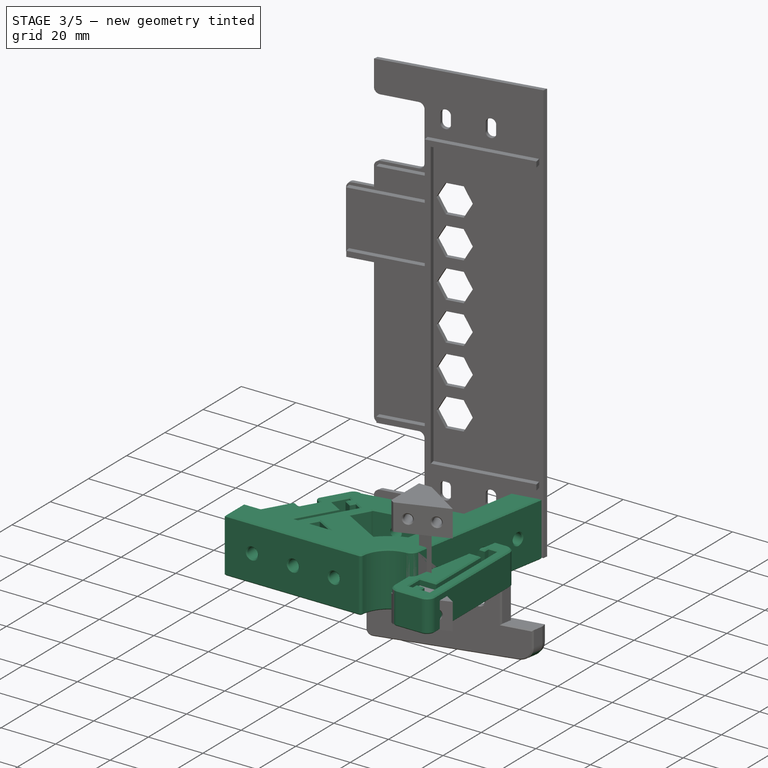
[diagram: stage 3 of 5 — iso view after this stage's code; geometry added in this stage tinted green]
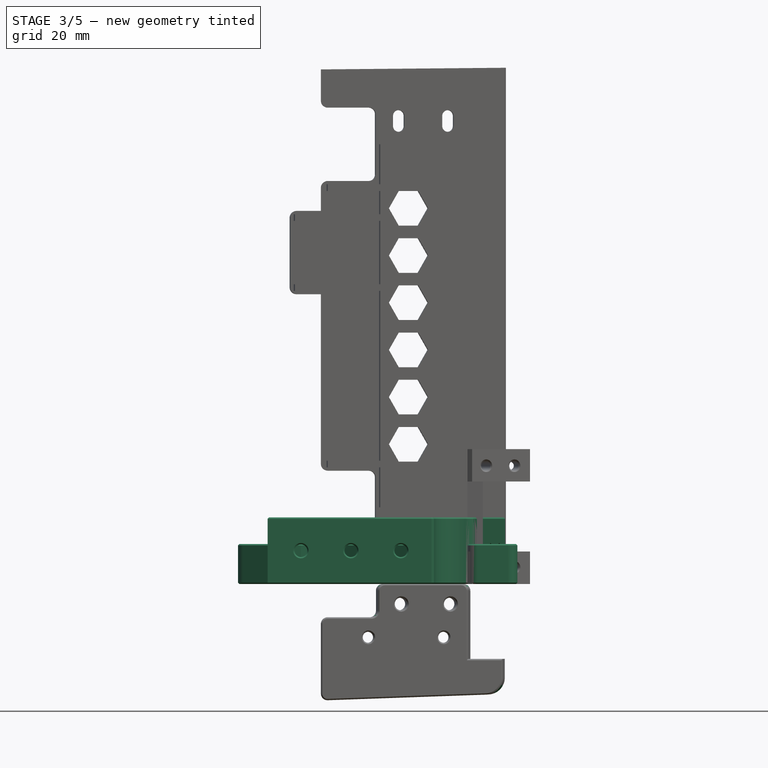
[diagram: stage 3 of 5 — front view after this stage's code; geometry added in this stage tinted green]
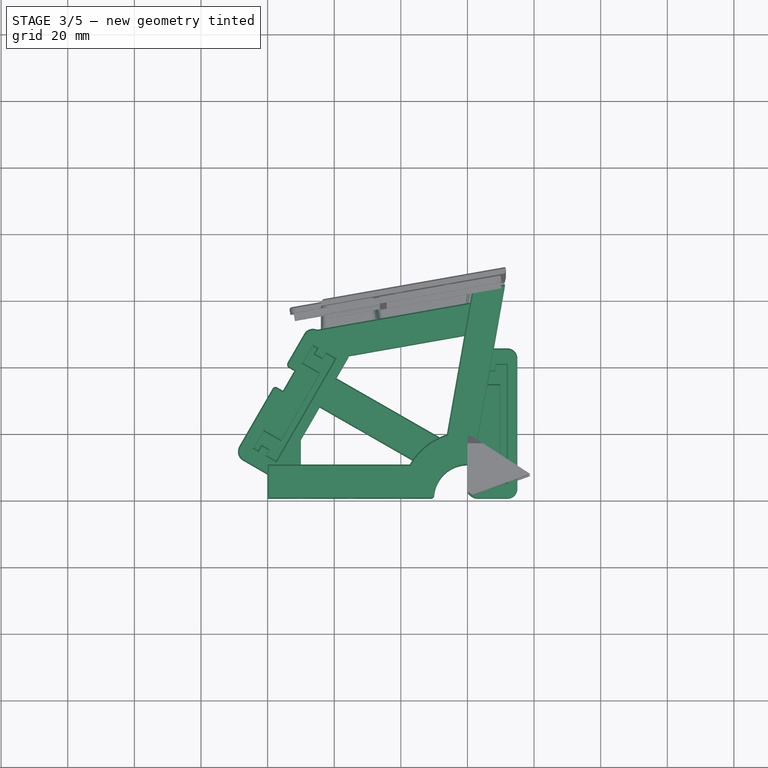
[diagram: stage 3 of 5 — top view after this stage's code; geometry added in this stage tinted green]
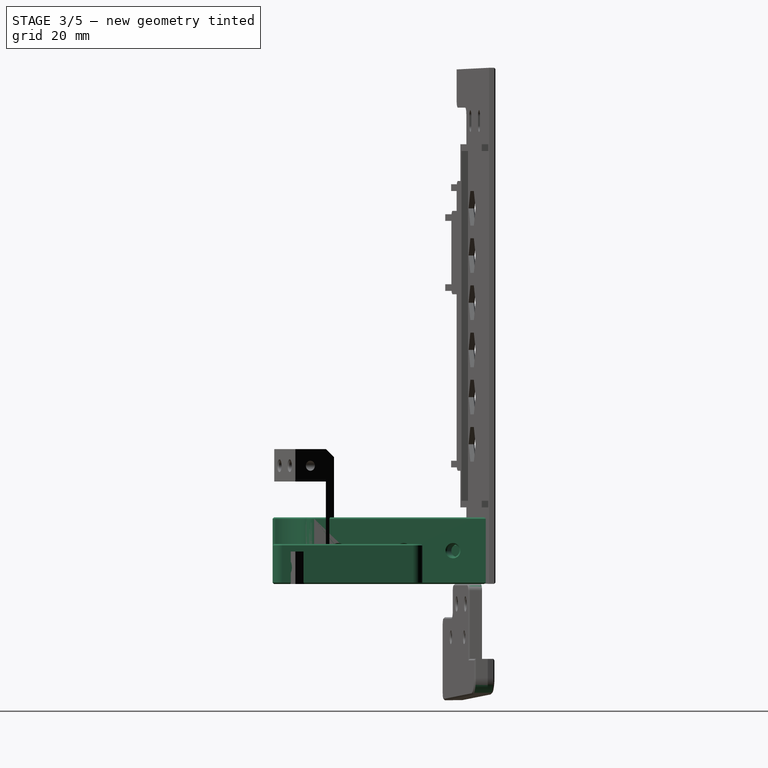
[diagram: stage 3 of 5 — right view after this stage's code; geometry added in this stage tinted green]
FEATURE [PartDesign::Body] Body  label="tray-mounter"
  Group = -> [Sketch,Pad,Sketch001,Pocket,Sketch002,Pocket001,Fillet,Fillet001,Chamfer]
  Origin = -> Origin
  Tip = -> Chamfer
FEATURE [Spreadsheet::Sheet] Spreadsheet  label="args"
  cells = A1=thread insert hole radius; B1(thread_insert_radius)=1.9; A3=lid-width; B3(lid_width)=155; A4=lid left angle; B4(lid_left_angle)=0.5; A5=lid-right-angle; B5(lid_right_angle)=0.5
FEATURE [Part::Feature] Cut008004003004014002002005003004003002003001003001002001002002011001002  label="din-holder005"
  Placement = pos=(-110,18,1e-14) rot=(0,-1,0;1.5708rad)
  shape: bbox 20 x 45 x 16 mm, 59 faces (baked)
FEATURE [Sketcher::SketchObject] Sketch003
  FullyConstrained = true
  MapMode = 5
  Support = -> [XY_Plane001]
  sketch-geometry (4):
    g0: LineSegment StartX=0 StartY=0 StartZ=0 EndX=15 EndY=0 EndZ=0
    g1: LineSegment StartX=15 StartY=0 StartZ=0 EndX=15 EndY=45 EndZ=0
    g2: LineSegment StartX=15 StartY=45 StartZ=0 EndX=0 EndY=45 EndZ=0
    g3: LineSegment StartX=0 StartY=45 StartZ=0 EndX=0 EndY=0 EndZ=0
  constraints (11):
    c: Coincident(g0,g1)
    c: Coincident(g1,g2)
    c: Coincident(g2,g3)
    c: Coincident(g3,g0)
    c: Horizontal(g0)
    c: Horizontal(g2)
    c: Vertical(g1)
    c: Vertical(g3)
    c: Coincident(g0,g-1)
    c: DistanceY(g1,g1) = 45
    c: DistanceX(g2,g2) = 15
FEATURE [PartDesign::Pad] Pad001
  Direction = (1,1,1)
  Length = 12
  Length2 = 100
  Profile = -> Sketch003
  Type = 0
FEATURE [Sketcher::SketchObject] Sketch004
  FullyConstrained = true
  MapMode = 5
  Placement = pos=(0,0,12) rot=(0,0,1;0rad)
  Support = -> [Pad001]
  sketch-geometry (16):
    g0: LineSegment StartX=4 StartY=4.75 StartZ=0 EndX=5.5 EndY=4.75 EndZ=0
    g1: LineSegment StartX=5.5 StartY=4.75 StartZ=0 EndX=5.5 EndY=6.75 EndZ=0
    g2: LineSegment StartX=5.5 StartY=6.75 StartZ=0 EndX=8.5 EndY=6.75 EndZ=0
    g3: LineSegment StartX=8.5 StartY=6.75 StartZ=0 EndX=8.5 EndY=4.75 EndZ=0
    g4: LineSegment StartX=8.5 StartY=4.75 StartZ=0 EndX=11.75 EndY=4.75 EndZ=0
    g5: LineSegment StartX=11.75 StartY=4.75 StartZ=0 EndX=11.75 EndY=40.25 EndZ=0
    g6: LineSegment StartX=11.75 StartY=40.25 StartZ=0 EndX=8.5 EndY=40.25 EndZ=0
    g7: LineSegment StartX=8.5 StartY=40.25 StartZ=0 EndX=8.5 EndY=38.25 EndZ=0
    g8: LineSegment StartX=8.5 StartY=38.25 StartZ=0 EndX=5.5 EndY=38.25 EndZ=0
    g9: LineSegment StartX=5.5 StartY=38.25 StartZ=0 EndX=5.5 EndY=40.25 EndZ=0
    g10: LineSegment StartX=5.5 StartY=40.25 StartZ=0 EndX=4 EndY=40.25 EndZ=0
    g11: LineSegment StartX=4 StartY=40.25 StartZ=0 EndX=4 EndY=34.25 EndZ=0
    g12: LineSegment StartX=4 StartY=34.25 StartZ=0 EndX=10 EndY=34.25 EndZ=0
    g13: LineSegment StartX=10 StartY=34.25 StartZ=0 EndX=10 EndY=10.75 EndZ=0
    g14: LineSegment StartX=10 StartY=10.75 StartZ=0 EndX=4 EndY=10.75 EndZ=0
    g15: LineSegment StartX=4 StartY=10.75 StartZ=0 EndX=4 EndY=4.75 EndZ=0
  constraints (48):
    c: Horizontal(g0)
    c: Coincident(g0,g1)
    c: Vertical(g1)
    c: Coincident(g1,g2)
    c: Horizontal(g2)
    c: Coincident(g2,g3)
    c: Vertical(g3)
    c: Coincident(g3,g4)
    c: Horizontal(g4)
    c: Coincident(g4,g5)
    c: Vertical(g5)
    c: Coincident(g5,g6)
    c: Horizontal(g6)
    c: Coincident(g6,g7)
    c: Vertical(g7)
    c: Coincident(g7,g8)
    c: Horizontal(g8)
    c: Coincident(g8,g9)
    c: Vertical(g9)
    c: Coincident(g9,g10)
    c: Horizontal(g10)
    c: DistanceY(g5,g5) = 35.5
    c: DistanceX(g6,g6) = 3.25
    c: DistanceX(g4,g4) = 3.25
    c: DistanceX(g2,g2) = 3
    c: DistanceX(g8,g8) = 3
    c: DistanceX(g0,g0) = 1.5
    c: Horizontal(g4,g0)
    c: Horizontal(g10,g5)
    c: DistanceY(g9,g9) = 2
    c: DistanceY(g1,g1) = 2
    c: DistanceY(g-1,g0) = 4.75
    c: DistanceX(g-1,g0) = 4
    c: Coincident(g10,g11)
    c: Vertical(g11)
    c: Coincident(g11,g12)
    c: Horizontal(g12)
    c: Coincident(g12,g13)
    c: Vertical(g13)
    c: Coincident(g13,g14)
    c: Horizontal(g14)
    c: Coincident(g14,g15)
    c: Coincident(g15,g0)
    c: Vertical(g15)
    c: DistanceY(g11,g11) = 6
    c: DistanceY(g15,g15) = 6
    c: DistanceX(g12,g12) = 6
    c: Vertical(g11,g14)
FEATURE [PartDesign::Pocket] Pocket002
  BaseFeature = -> Pad001
  Length = 10
  Length2 = 100
  Profile = -> Sketch004
  Type = 0
FEATURE [Sketcher::SketchObject] Sketch005
  FullyConstrained = true
  MapMode = 5
  Placement = pos=(0,0,0) rot=(0.57735,-0.57735,-0.57735;2.0944rad)
  Support = -> [Pocket002]
  expr: Constraints[3] = <<args>>.thread_insert_radius
  expr: Constraints[2] = 45 / 2
  sketch-geometry (2):
    g0: Circle CenterX=-27.5 CenterY=7 CenterZ=0 NormalX=0 NormalY=0 NormalZ=1 AngleXU=0 Radius=1.9
    g1: GeomPoint X=-22.5 Y=7 Z=0
  constraints (5):
    c: Horizontal(g0,g1)
    c: DistanceY(g-1,g1) = 7
    c: DistanceX(g1,g-1) = 22.5
    c: Radius(g0) = 1.9
    c: DistanceX(g0,g1) = 5
FEATURE [PartDesign::Pocket] Pocket003
  BaseFeature = -> Pocket002
  Length = 0
  Length2 = 100
  Profile = -> Sketch005
  Type = 3
  UpToFace = -> Pocket002 [Face20]
FEATURE [PartDesign::Body] Body004  label="connect-arm-3"
  Group = -> [Sketch008,Pad004,Chamfer004,Sketch014,Pocket005,Chamfer008]
  Origin = -> Origin004
  Tip = -> Chamfer008
FEATURE [Sketcher::SketchObject] Sketch015
  FullyConstrained = true
  MapMode = 5
  Placement = pos=(0,0,12) rot=(0,0,1;0rad)
  Support = -> [Pocket003]
  sketch-geometry (4):
    g0: LineSegment StartX=0 StartY=31 StartZ=0 EndX=3 EndY=31 EndZ=0
    g1: LineSegment StartX=3 StartY=31 StartZ=0 EndX=3 EndY=24 EndZ=0
    g2: LineSegment StartX=3 StartY=24 StartZ=0 EndX=0 EndY=24 EndZ=0
    g3: LineSegment StartX=0 StartY=24 StartZ=0 EndX=0 EndY=31 EndZ=0
  constraints (12):
    c: Coincident(g0,g1)
    c: Coincident(g1,g2)
    c: Coincident(g2,g3)
    c: Coincident(g3,g0)
    c: Horizontal(g0)
    c: Horizontal(g2)
    c: Vertical(g1)
    c: Vertical(g3)
    c: PointOnObject(g0,g-2)
    c: DistanceY(g1,g1) = 7
    c: DistanceX(g2,g2) = 3
    c: DistanceY(g-1,g2) = 24
FEATURE [PartDesign::Pocket] Pocket006
  BaseFeature = -> Pocket003
  Length = 5
  Length2 = 100
  Profile = -> Sketch015
  Type = 1
FEATURE [PartDesign::Fillet] Fillet004
  Base = -> Pocket006 [Edge41,Edge7]
  BaseFeature = -> Pocket006
  Radius = 1
  SupportTransform = false
FEATURE [PartDesign::Fillet] Fillet005
  Base = -> Fillet004 [Edge16,Edge3,Edge42,Edge45]
  BaseFeature = -> Fillet004
  Radius = 3
  SupportTransform = false
FEATURE [PartDesign::Chamfer] Chamfer009
  Angle = 45
  Base = -> Fillet005 [Face5,Face2,Edge53]
  BaseFeature = -> Fillet005
  ChamferType = 0
  FlipDirection = false
  Size = 0.4
  Size2 = 1
  SupportTransform = false
FEATURE [PartDesign::Body] Body001  label="din-mounter"
  Group = -> [Sketch003,Pad001,Sketch004,Pocket002,Sketch005,Pocket003,Sketch015,Pocket006,Fillet004,Fillet005,Chamfer009]
  Origin = -> Origin001
  Placement = pos=(-70,13,0) rot=(0,0,-1;0.523599rad)
  Tip = -> Chamfer009
FEATURE [Part::Feature] Body004005  label="connect-arm-004"
  shape: bbox 39.32 x 28.32 x 12 mm, 20 faces (baked)
FEATURE [Part::Feature] Body003001  label="connect-arm-005"
  shape: bbox 49.01 x 16.44 x 12 mm, 18 faces (baked)
FEATURE [Part::Feature] Body002001  label="connect-arm-006"
  shape: bbox 10 x 13 x 12 mm, 17 faces (baked)
FEATURE [Part::Feature] Body001001  label="din-mounter001"
  Placement = pos=(-70,13,0) rot=(0,0,-1;0.523599rad)
  shape: bbox 33.29 x 44.27 x 12 mm, 79 faces (baked)
FEATURE [Part::Feature] Body004006  label="tray-mounter001"
  shape: bbox 71.29 x 64.01 x 20 mm, 50 faces (baked)
FEATURE [Part::MultiFuse] Fusion  label="arm-30-r3"
  Refine = true
  Shapes = -> [Body004006,Body001001,Body002001,Body003001,Body004005]
FEATURE [PartDesign::Fillet] Fillet006
  Base = -> Pocket010 [Edge14,Edge13,Edge31,Edge29,Edge24]
  BaseFeature = -> Pocket010
  Radius = 2
  SupportTransform = false
FEATURE [PartDesign::Fillet] Fillet007
  Base = -> Fillet006 [Edge37,Edge42]
  BaseFeature = -> Fillet006
  Radius = 5
  SupportTransform = false
FEATURE [PartDesign::Chamfer] Chamfer010
  Angle = 45
  Base = -> Fillet007 [Face23,Face1]
  BaseFeature = -> Fillet007
  ChamferType = 0
  FlipDirection = false
  Size = 0.4
  Size2 = 1
  SupportTransform = false
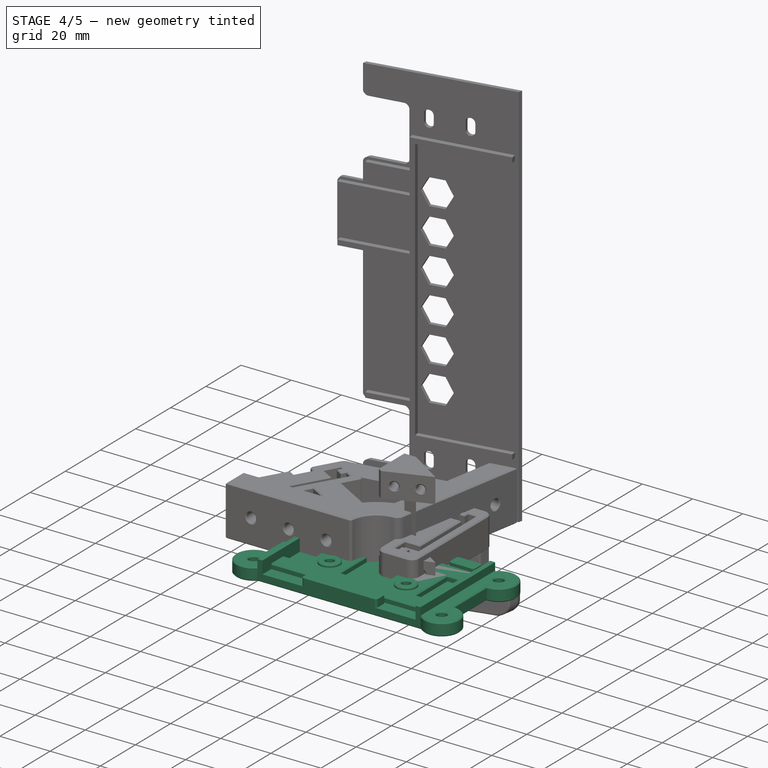
[diagram: stage 4 of 5 — iso view after this stage's code; geometry added in this stage tinted green]
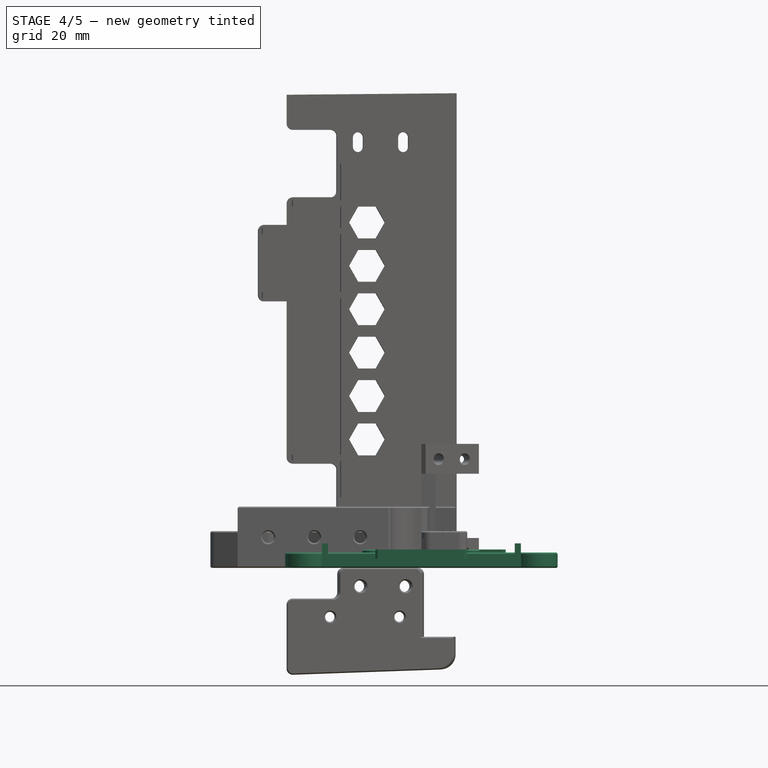
[diagram: stage 4 of 5 — front view after this stage's code; geometry added in this stage tinted green]
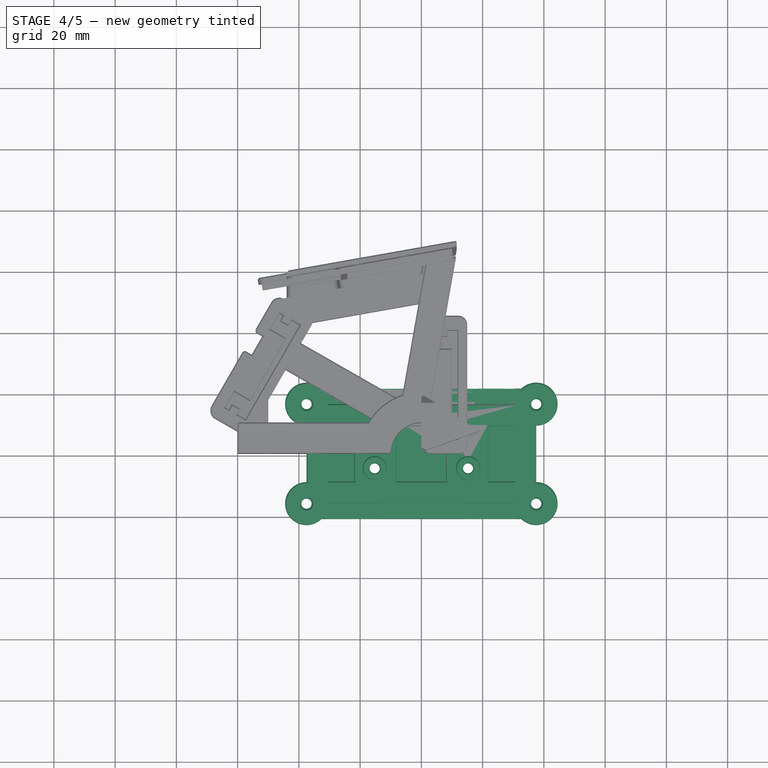
[diagram: stage 4 of 5 — top view after this stage's code; geometry added in this stage tinted green]
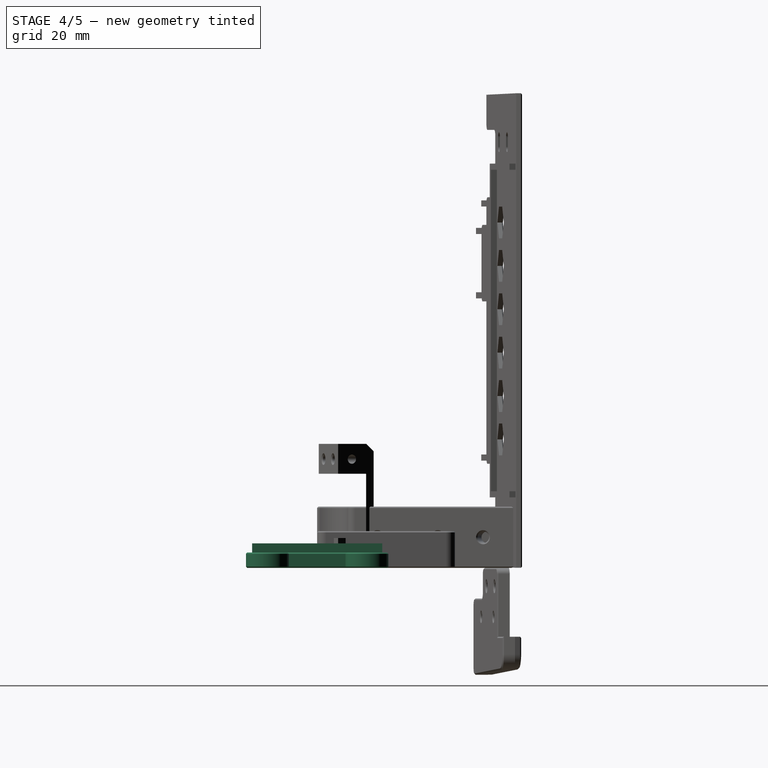
[diagram: stage 4 of 5 — right view after this stage's code; geometry added in this stage tinted green]
FEATURE [PartDesign::Body] Body002  label="connect-arm-1"
  Group = -> [Sketch006,Pad002,Chamfer002]
  Origin = -> Origin002
  Tip = -> Chamfer002
FEATURE [Sketcher::SketchObject] Sketch007
  FullyConstrained = false
  MapMode = 5
  Support = -> [XY_Plane003]
  sketch-geometry (5):
    g0: LineSegment StartX=-8 StartY=0 StartZ=0 EndX=0.66681 EndY=49.1519 EndZ=0
    g1: LineSegment StartX=0.66681 StartY=49.1519 StartZ=0 EndX=2.40329 EndY=59 EndZ=0
    g2: LineSegment StartX=2.40329 StartY=59 StartZ=0 EndX=-46.6027 EndY=50.3589 EndZ=0
    g3: LineSegment StartX=-46.6027 StartY=50.3589 StartZ=0 EndX=-36.7452 EndY=42.5552 EndZ=0
    g4: LineSegment StartX=-36.7452 StartY=42.5552 StartZ=0 EndX=0.66681 EndY=49.1519 EndZ=0
  constraints (13):
    c: PointOnObject(g0,g-1)
    c: Coincident(g1,g0)
    c: Parallel(g1,g0)
    c: DistanceX(g0,g-1) = 8
    c: Angle(g-1,g0) = 1.39626
    c: DistanceY(g-1,g1) = 59
    c: Distance(g1) = 10
    c: Coincident(g2,g1)
    c: Coincident(g3,g2)
    c: Coincident(g4,g3)
    c: Coincident(g4,g1)
    c: Parallel(g2,g4)
    c: Angle(g2,g1) = 1.22173
FEATURE [PartDesign::Pad] Pad003
  Direction = (1,1,1)
  Length = 12
  Length2 = 100
  Profile = -> Sketch007
  Type = 0
FEATURE [Sketcher::SketchObject] Sketch008
  FullyConstrained = false
  MapMode = 5
  Support = -> [XY_Plane004]
  sketch-geometry (4):
    g0: LineSegment StartX=-40.8304 StartY=36.9006 StartZ=0 EndX=-45.8304 EndY=28.2404 EndZ=0
    g1: LineSegment StartX=-45.8304 StartY=28.2404 StartZ=0 EndX=-11.51 EndY=8.58289 EndZ=0
    g2: LineSegment StartX=-11.51 StartY=8.58289 StartZ=0 EndX=-6.51003 EndY=17.2431 EndZ=0
    g3: LineSegment StartX=-6.51003 StartY=17.2431 StartZ=0 EndX=-40.8304 EndY=36.9006 EndZ=0
  constraints (8):
    c: Coincident(g0,g1)
    c: Coincident(g1,g2)
    c: Coincident(g2,g3)
    c: Coincident(g3,g0)
    c: Parallel(g1,g3)
    c: Distance(g0) = 10
    c: Angle(g-1,g0) = 1.0472
    c: Distance(g2,g1) = 10
FEATURE [PartDesign::Pad] Pad004
  Direction = (1,1,1)
  Length = 12
  Length2 = 100
  Profile = -> Sketch008
  Type = 0
FEATURE [PartDesign::Chamfer] Chamfer004
  Angle = 45
  Base = -> Pad004 [Face6,Face5]
  BaseFeature = -> Pad004
  ChamferType = 0
  FlipDirection = false
  Size = 0.4
  Size2 = 1
  SupportTransform = false
FEATURE [PartDesign::Body] Body003  label="connect-arm-2"
  Group = -> [Sketch007,Pad003,Chamfer003,Sketch009,Pocket004,Chamfer005]
  Origin = -> Origin003
  Tip = -> Chamfer005
FEATURE [Sketcher::SketchObject] Sketch010
  FullyConstrained = true
  MapMode = 5
  Support = -> [XY_Plane005]
  expr: Constraints[14] = <<args>>.thread_insert_radius
  expr: Constraints[13] = <<args>>.thread_insert_radius
  expr: Constraints[15] = <<args>>.thread_insert_radius
  expr: Constraints[12] = <<args>>.thread_insert_radius
  expr: Constraints[11] = <<args>>.thread_insert_radius
  expr: Constraints[10] = <<args>>.thread_insert_radius
  sketch-geometry (26):
    g0: Circle CenterX=-15.25 CenterY=-4.75 CenterZ=0 NormalX=0 NormalY=0 NormalZ=1 AngleXU=0 Radius=1.9
    g1: Circle CenterX=15.25 CenterY=-4.75 CenterZ=0 NormalX=0 NormalY=0 NormalZ=1 AngleXU=0 Radius=1.9
    g2: Circle CenterX=-37.5 CenterY=16.25 CenterZ=0 NormalX=0 NormalY=0 NormalZ=1 AngleXU=0 Radius=1.9
    g3: Circle CenterX=-37.5 CenterY=-16.25 CenterZ=0 NormalX=0 NormalY=0 NormalZ=1 AngleXU=0 Radius=1.9
    g4: Circle CenterX=37.5 CenterY=16.25 CenterZ=0 NormalX=0 NormalY=0 NormalZ=1 AngleXU=0 Radius=1.9
    g5: Circle CenterX=37.5 CenterY=-16.25 CenterZ=0 NormalX=0 NormalY=0 NormalZ=1 AngleXU=0 Radius=1.9
    g6: ArcOfCircle CenterX=-37.5 CenterY=16.25 CenterZ=0 NormalX=0 NormalY=0 NormalZ=1 AngleXU=0 Radius=7 StartAngle=0 EndAngle=4.71239
    g7: ArcOfCircle CenterX=-37.5 CenterY=-16.25 CenterZ=0 NormalX=0 NormalY=0 NormalZ=1 AngleXU=0 Radius=7 StartAngle=1.5708 EndAngle=6.28319
    g8: ArcOfCircle CenterX=37.5 CenterY=16.25 CenterZ=0 NormalX=0 NormalY=0 NormalZ=1 AngleXU=0 Radius=7 StartAngle=4.71239 EndAngle=9.42478
    g9: ArcOfCircle CenterX=37.5 CenterY=-16.25 CenterZ=0 NormalX=0 NormalY=0 NormalZ=1 AngleXU=0 Radius=7 StartAngle=3.14159 EndAngle=7.85398
    g10: LineSegment StartX=-30.5 StartY=16.25 StartZ=0 EndX=30.5 EndY=16.25 EndZ=0
    g11: LineSegment StartX=-30.5 StartY=-16.25 StartZ=0 EndX=30.5 EndY=-16.25 EndZ=0
    g12: LineSegment StartX=-37.5 StartY=9.25 StartZ=0 EndX=-37.5 EndY=-9.25 EndZ=0
    g13: LineSegment StartX=37.5 StartY=9.25 StartZ=0 EndX=37.5 EndY=-9.25 EndZ=0
    g14: LineSegment StartX=-32 StartY=9 StartZ=0 EndX=-22 EndY=9 EndZ=0
    g15: LineSegment StartX=-22 StartY=9 StartZ=0 EndX=-22 EndY=-9 EndZ=0
    g16: LineSegment StartX=-22 StartY=-9 StartZ=0 EndX=-32 EndY=-9 EndZ=0
    g17: LineSegment StartX=-32 StartY=-9 StartZ=0 EndX=-32 EndY=9 EndZ=0
    g18: LineSegment StartX=-8 StartY=9 StartZ=0 EndX=8 EndY=9 EndZ=0
    g19: LineSegment StartX=8 StartY=9 StartZ=0 EndX=8 EndY=-9 EndZ=0
    g20: LineSegment StartX=8 StartY=-9 StartZ=0 EndX=-8 EndY=-9 EndZ=0
    g21: LineSegment StartX=-8 StartY=-9 StartZ=0 EndX=-8 EndY=9 EndZ=0
    g22: LineSegment StartX=22 StartY=9 StartZ=0 EndX=32 EndY=9 EndZ=0
    g23: LineSegment StartX=32 StartY=9 StartZ=0 EndX=32 EndY=-9 EndZ=0
    g24: LineSegment StartX=32 StartY=-9 StartZ=0 EndX=22 EndY=-9 EndZ=0
    g25: LineSegment StartX=22 StartY=-9 StartZ=0 EndX=22 EndY=9 EndZ=0
  constraints (78):
    c: DistanceX(g0,g-1) = 15.25
    c: DistanceX(g-1,g1) = 15.25
    c: Horizontal(g3,g5)
    c: Horizontal(g2,g4)
    c: Vertical(g4,g5)
    c: DistanceY(g-1,g2) = 16.25
    c: DistanceY(g3,g-1) = 16.25
    c: DistanceX(g2,g-1) = 37.5
    c: Vertical(g3,g2)
    c: DistanceX(g-1,g4) = 37.5
    c: Radius(g2) = 1.9
    c: Radius(g3) = 1.9
    c: Radius(g0) = 1.9
    c: Radius(g1) = 1.9
    c: Radius(g4) = 1.9
    c: Radius(g5) = 1.9
    c: Coincident(g6,g2)
    c: Coincident(g7,g3)
    c: Coincident(g8,g4)
    c: Coincident(g9,g5)
    c: Horizontal(g3,g7)
    c: Horizontal(g7,g9)
    c: Horizontal(g2,g6)
    c: Horizontal(g6,g8)
    c: Radius(g6) = 7
    c: Radius(g7) = 7
    c: Radius(g8) = 7
    c: Radius(g9) = 7
    c: Coincident(g10,g6)
    c: Coincident(g10,g8)
    c: Coincident(g11,g7)
    c: Coincident(g11,g9)
    c: Coincident(g12,g6)
    c: Coincident(g12,g7)
    c: Vertical(g12)
    c: Coincident(g13,g8)
    c: Coincident(g13,g9)
    c: Vertical(g13)
    c: Vertical(g4,g8)
    c: Vertical(g3,g7)
    c: Coincident(g14,g15)
    c: Coincident(g15,g16)
    c: Coincident(g16,g17)
    c: Coincident(g17,g14)
    c: Horizontal(g14)
    c: Horizontal(g16)
    c: Vertical(g15)
    c: Vertical(g17)
    c: Coincident(g18,g19)
    c: Coincident(g19,g20)
    c: Coincident(g20,g21)
    c: Coincident(g21,g18)
    c: Horizontal(g18)
    c: Horizontal(g20)
    c: Vertical(g19)
    c: Vertical(g21)
    c: Coincident(g22,g23)
    c: Coincident(g23,g24)
    c: Coincident(g24,g25)
    c: Coincident(g25,g22)
    c: Horizontal(g22)
    c: Horizontal(g24)
    c: Vertical(g23)
    c: Vertical(g25)
    c: Horizontal(g16,g20)
    c: Horizontal(g20,g24)
    c: Horizontal(g14,g18)
    c: Horizontal(g18,g22)
    c: DistanceX(g16,g16) = 10
    c: DistanceX(g24,g24) = 10
    c: DistanceX(g20,g20) = 16
    c: DistanceX(g20,g-1) = 8
    c: DistanceX(g15,g-1) = 22
    c: DistanceX(g-1,g24) = 22
    c: DistanceY(g17,g17) = 18
    c: DistanceY(g15,g-1) = 9
    c: Horizontal(g0,g1)
    c: DistanceY(g0,g-1) = 4.75
FEATURE [PartDesign::Pad] Pad005
  Direction = (1,1,1)
  Length = 5
  Length2 = 100
  Profile = -> Sketch010
  Type = 0
FEATURE [PartDesign::Chamfer] Chamfer006
  Angle = 45
  Base = -> Pad005 [Face28,Face27]
  BaseFeature = -> Pad005
  ChamferType = 0
  FlipDirection = false
  Size = 0.4
  Size2 = 1
  SupportTransform = false
FEATURE [PartDesign::Body] Body004003  label="pcb-mounter-back"
  Group = -> [Sketch010,Pad005,Chamfer006]
  Origin = -> Origin005
  Placement = pos=(0,0,-10) rot=(0,0,1;0rad)
  Tip = -> Chamfer006
FEATURE [Sketcher::SketchObject] Sketch011
  FullyConstrained = true
  MapMode = 5
  Support = -> [XY_Plane006]
  sketch-geometry (18):
    g0: Circle CenterX=-15.25 CenterY=-4.75 CenterZ=0 NormalX=0 NormalY=0 NormalZ=1 AngleXU=0 Radius=1.65
    g1: Circle CenterX=15.25 CenterY=-4.75 CenterZ=0 NormalX=0 NormalY=0 NormalZ=1 AngleXU=0 Radius=1.65
    g2: Circle CenterX=-37.5 CenterY=16.25 CenterZ=0 NormalX=0 NormalY=0 NormalZ=1 AngleXU=0 Radius=1.65
    g3: Circle CenterX=-37.5 CenterY=-16.25 CenterZ=0 NormalX=0 NormalY=0 NormalZ=1 AngleXU=0 Radius=1.65
    g4: Circle CenterX=37.5 CenterY=16.25 CenterZ=0 NormalX=0 NormalY=0 NormalZ=1 AngleXU=0 Radius=1.65
    g5: Circle CenterX=37.5 CenterY=-16.25 CenterZ=0 NormalX=0 NormalY=0 NormalZ=1 AngleXU=0 Radius=1.65
    g6: ArcOfCircle CenterX=-37.5 CenterY=16.25 CenterZ=0 NormalX=0 NormalY=0 NormalZ=1 AngleXU=0 Radius=5 StartAngle=1.5708 EndAngle=4.71239
    g7: ArcOfCircle CenterX=-37.5 CenterY=-16.25 CenterZ=0 NormalX=0 NormalY=0 NormalZ=1 AngleXU=0 Radius=5 StartAngle=1.5708 EndAngle=4.71239
    g8: ArcOfCircle CenterX=37.5 CenterY=16.25 CenterZ=0 NormalX=0 NormalY=0 NormalZ=1 AngleXU=0 Radius=5 StartAngle=4.71239 EndAngle=7.85398
    g9: ArcOfCircle CenterX=37.5 CenterY=-16.25 CenterZ=0 NormalX=0 NormalY=0 NormalZ=1 AngleXU=0 Radius=5 StartAngle=4.71239 EndAngle=7.85398
    g10: LineSegment StartX=-37.5 StartY=21.25 StartZ=0 EndX=37.5 EndY=21.25 EndZ=0
    g11: LineSegment StartX=-37.5 StartY=-21.25 StartZ=0 EndX=37.5 EndY=-21.25 EndZ=0
    g12: LineSegment StartX=-37.5 StartY=11.25 StartZ=0 EndX=-32.5 EndY=11.25 EndZ=0
    g13: LineSegment StartX=-32.5 StartY=11.25 StartZ=0 EndX=-32.5 EndY=-11.25 EndZ=0
    g14: LineSegment StartX=-32.5 StartY=-11.25 StartZ=0 EndX=-37.5 EndY=-11.25 EndZ=0
    g15: LineSegment StartX=37.5 StartY=11.25 StartZ=0 EndX=32.5 EndY=11.25 EndZ=0
    g16: LineSegment StartX=32.5 StartY=11.25 StartZ=0 EndX=32.5 EndY=-11.25 EndZ=0
    g17: LineSegment StartX=32.5 StartY=-11.25 StartZ=0 EndX=37.5 EndY=-11.25 EndZ=0
  constraints (54):
    c: Horizontal(g3,g5)
    c: Horizontal(g2,g4)
    c: Vertical(g2,g3)
    c: Vertical(g4,g5)
    c: DistanceY(g-1,g2) = 16.25
    c: DistanceY(g3,g-1) = 16.25
    c: DistanceX(g2,g-1) = 37.5
    c: DistanceX(g-1,g4) = 37.5
    c: DistanceX(g0,g-1) = 15.25
    c: DistanceX(g-1,g1) = 15.25
    c: Radius(g2) = 1.65
    c: Radius(g3) = 1.65
    c: Radius(g4) = 1.65
    c: Radius(g5) = 1.65
    c: Coincident(g6,g2)
    c: Coincident(g7,g3)
    c: Coincident(g8,g4)
    c: Coincident(g9,g5)
    c: Vertical(g7,g7)
    c: Vertical(g7,g6)
    c: Vertical(g6,g6)
    c: Vertical(g6,g2)
    c: Vertical(g9,g9)
    c: Vertical(g9,g8)
    c: Vertical(g8,g8)
    c: Vertical(g8,g4)
    c: Radius(g6) = 5
    c: Radius(g7) = 5
    c: Radius(g9) = 5
    c: Radius(g8) = 5
    c: Coincident(g10,g6)
    c: Coincident(g10,g8)
    c: Coincident(g11,g7)
    c: Coincident(g11,g9)
    c: Coincident(g12,g6)
    c: Horizontal(g12)
    c: Coincident(g13,g12)
    c: Vertical(g13)
    c: Coincident(g14,g13)
    c: Coincident(g14,g7)
    c: Horizontal(g14)
    c: Coincident(g15,g8)
    c: Horizontal(g15)
    c: Coincident(g16,g15)
    c: Vertical(g16)
    c: Coincident(g17,g16)
    c: Coincident(g17,g9)
    c: Horizontal(g17)
    c: DistanceX(g15,g15) = 5
    c: DistanceX(g12,g12) = 5
    c: Radius(g0) = 1.65
    c: Radius(g1) = 1.65
    c: Horizontal(g0,g1)
    c: DistanceY(g0,g-1) = 4.75
FEATURE [PartDesign::Pad] Pad006
  Direction = (1,1,1)
  Length = 3
  Length2 = 100
  Profile = -> Sketch011
  Type = 0
FEATURE [Sketcher::SketchObject] Sketch012
  FullyConstrained = true
  MapMode = 5
  Placement = pos=(0,0,3) rot=(0,0,1;0rad)
  Support = -> [Pad006]
  sketch-geometry (8):
    g0: LineSegment StartX=-32.5 StartY=21.25 StartZ=0 EndX=-30.5 EndY=21.25 EndZ=0
    g1: LineSegment StartX=-30.5 StartY=21.25 StartZ=0 EndX=-30.5 EndY=-21.25 EndZ=0
    g2: LineSegment StartX=-30.5 StartY=-21.25 StartZ=0 EndX=-32.5 EndY=-21.25 EndZ=0
    g3: LineSegment StartX=-32.5 StartY=-21.25 StartZ=0 EndX=-32.5 EndY=21.25 EndZ=0
    g4: LineSegment StartX=30.5 StartY=21.25 StartZ=0 EndX=32.5 EndY=21.25 EndZ=0
    g5: LineSegment StartX=32.5 StartY=21.25 StartZ=0 EndX=32.5 EndY=-21.25 EndZ=0
    g6: LineSegment StartX=32.5 StartY=-21.25 StartZ=0 EndX=30.5 EndY=-21.25 EndZ=0
    g7: LineSegment StartX=30.5 StartY=-21.25 StartZ=0 EndX=30.5 EndY=21.25 EndZ=0
  constraints (24):
    c: Coincident(g0,g1)
    c: Coincident(g1,g2)
    c: Coincident(g2,g3)
    c: Coincident(g3,g0)
    c: Horizontal(g0)
    c: Horizontal(g2)
    c: Vertical(g1)
    c: Vertical(g3)
    c: Coincident(g4,g5)
    c: Coincident(g5,g6)
    c: Coincident(g6,g7)
    c: Coincident(g7,g4)
    c: Horizontal(g4)
    c: Horizontal(g6)
    c: Vertical(g5)
    c: Vertical(g7)
    c: DistanceX(g0,g0) = 2
    c: DistanceX(g4,g4) = 2
    c: Horizontal(g0,g4)
    c: Horizontal(g1,g6)
    c: DistanceY(g3,g3) = 42.5
    c: DistanceY(g1,g-1) = 21.25
    c: DistanceX(g1,g-1) = 30.5
    c: DistanceX(g-1,g6) = 30.5
FEATURE [PartDesign::Pad] Pad007
  BaseFeature = -> Pad006
  Direction = (1,1,1)
  Length = 5
  Length2 = 100
  Profile = -> Sketch012
  Type = 0
FEATURE [Sketcher::SketchObject] Sketch013
  FullyConstrained = true
  MapMode = 5
  Placement = pos=(0,0,3) rot=(0,0,1;0rad)
  Support = -> [Pad007]
  sketch-geometry (16):
    g0: Circle CenterX=-15.25 CenterY=-4.75 CenterZ=0 NormalX=0 NormalY=0 NormalZ=1 AngleXU=0 Radius=4
    g1: Circle CenterX=15.25 CenterY=-4.75 CenterZ=0 NormalX=0 NormalY=0 NormalZ=1 AngleXU=0 Radius=4
    g2: Circle CenterX=15.25 CenterY=-4.75 CenterZ=0 NormalX=0 NormalY=0 NormalZ=1 AngleXU=0 Radius=1.65
    g3: Circle CenterX=-15.25 CenterY=-4.75 CenterZ=0 NormalX=0 NormalY=0 NormalZ=1 AngleXU=0 Radius=1.65
    g4: LineSegment StartX=-27.5 StartY=21.25 StartZ=0 EndX=-17.5 EndY=21.25 EndZ=0
    g5: LineSegment StartX=-17.5 StartY=21.25 StartZ=0 EndX=-17.5 EndY=16.25 EndZ=0
    g6: LineSegment StartX=-17.5 StartY=16.25 StartZ=0 EndX=-27.5 EndY=16.25 EndZ=0
    g7: LineSegment StartX=-27.5 StartY=16.25 StartZ=0 EndX=-27.5 EndY=21.25 EndZ=0
    g8: LineSegment StartX=17.5 StartY=21.25 StartZ=0 EndX=27.5 EndY=21.25 EndZ=0
    g9: LineSegment StartX=27.5 StartY=21.25 StartZ=0 EndX=27.5 EndY=16.25 EndZ=0
    g10: LineSegment StartX=27.5 StartY=16.25 StartZ=0 EndX=17.5 EndY=16.25 EndZ=0
    g11: LineSegment StartX=17.5 StartY=16.25 StartZ=0 EndX=17.5 EndY=21.25 EndZ=0
    g12: LineSegment StartX=-15 StartY=-16.25 StartZ=0 EndX=15 EndY=-16.25 EndZ=0
    g13: LineSegment StartX=15 StartY=-16.25 StartZ=0 EndX=15 EndY=-21.25 EndZ=0
    g14: LineSegment StartX=15 StartY=-21.25 StartZ=0 EndX=-15 EndY=-21.25 EndZ=0
    g15: LineSegment StartX=-15 StartY=-21.25 StartZ=0 EndX=-15 EndY=-16.25 EndZ=0
  constraints (46):
    c: Coincident(g2,g1)
    c: Coincident(g3,g0)
    c: Coincident(g4,g5)
    c: Coincident(g5,g6)
    c: Coincident(g6,g7)
    c: Coincident(g7,g4)
    c: Horizontal(g4)
    c: Horizontal(g6)
    c: Vertical(g5)
    c: Vertical(g7)
    c: Coincident(g8,g9)
    c: Coincident(g9,g10)
    c: Coincident(g10,g11)
    c: Coincident(g11,g8)
    c: Horizontal(g8)
    c: Horizontal(g10)
    c: Vertical(g9)
    c: Vertical(g11)
    c: Coincident(g12,g13)
    c: Coincident(g13,g14)
    c: Coincident(g14,g15)
    c: Coincident(g15,g12)
    c: Horizontal(g12)
    c: Horizontal(g14)
    c: Vertical(g13)
    c: Vertical(g15)
    c: Radius(g3) = 1.65
    c: Radius(g2) = 1.65
    c: Radius(g0) = 4
    c: Radius(g1) = 4
    c: DistanceX(g0,g-1) = 15.25
    c: DistanceX(g-1,g1) = 15.25
    c: DistanceY(g5,g5) = 5
    c: DistanceY(g11,g11) = 5
    c: DistanceY(g15,g15) = 5
    c: DistanceX(g4,g4) = 10
    c: DistanceX(g8,g8) = 10
    c: DistanceX(g12,g12) = 30
    c: DistanceX(g12,g-1) = 15
    c: DistanceY(g12,g-1) = 16.25
    c: DistanceY(g-1,g5) = 16.25
    c: Horizontal(g5,g10)
    c: DistanceX(g5,g-1) = 17.5
    c: DistanceX(g-1,g10) = 17.5
    c: Horizontal(g0,g1)
    c: DistanceY(g0,g-1) = 4.75
FEATURE [PartDesign::Pad] Pad008
  BaseFeature = -> Pad007
  Direction = (1,1,1)
  Length = 3
  Length2 = 100
  Profile = -> Sketch013
  Type = 0
FEATURE [PartDesign::Fillet] Fillet003
  Base = -> Pad008 [Edge61,Edge112,Edge114,Edge62,Edge117,Edge119,Edge65,Edge64,Edge108,Edge110,Edge106,Edge105]
  BaseFeature = -> Pad008
  Radius = 1
  SupportTransform = false
FEATURE [PartDesign::Chamfer] Chamfer007
  Angle = 45
  Base = -> Fillet003 [Face35,Edge151,Edge134,Edge141,Edge156,Edge159,Edge158,Edge109,Edge111]
  BaseFeature = -> Fillet003
  ChamferType = 0
  FlipDirection = false
  Size = 0.4
  Size2 = 1
  SupportTransform = false
FEATURE [PartDesign::Body] Body004004  label="pcb-mounter-font"
  Group = -> [Sketch011,Pad006,Sketch012,Pad007,Sketch013,Pad008,Fillet003,Chamfer007]
  Origin = -> Origin006
  Tip = -> Chamfer007
FEATURE [Sketcher::SketchObject] Sketch014
  FullyConstrained = true
  MapMode = 5
  Placement = pos=(0.858401,1.4987,0) rot=(0.93592,-0.249051,-0.249051;1.63697rad)
  Support = -> [Chamfer004]
  sketch-geometry (4):
    g0: LineSegment StartX=-39 StartY=7.5 StartZ=0 EndX=-35 EndY=7.5 EndZ=0
    g1: LineSegment StartX=-35 StartY=7.5 StartZ=0 EndX=-35 EndY=4.5 EndZ=0
    g2: LineSegment StartX=-35 StartY=4.5 StartZ=0 EndX=-39 EndY=4.5 EndZ=0
    g3: LineSegment StartX=-39 StartY=4.5 StartZ=0 EndX=-39 EndY=7.5 EndZ=0
  constraints (12):
    c: Coincident(g0,g1)
    c: Coincident(g1,g2)
    c: Coincident(g2,g3)
    c: Coincident(g3,g0)
    c: Horizontal(g0)
    c: Horizontal(g2)
    c: Vertical(g1)
    c: Vertical(g3)
    c: DistanceX(g0,g0) = 4
    c: DistanceY(g3,g3) = 3
    c: DistanceY(g-1,g1) = 4.5
    c: DistanceX(g1,g-1) = 35
FEATURE [PartDesign::Pocket] Pocket005
  BaseFeature = -> Chamfer004
  Length = 5
  Length2 = 100
  Profile = -> Sketch014
  Type = 1
FEATURE [PartDesign::Chamfer] Chamfer008
  Angle = 45
  Base = -> Pocket005 [Edge21,Edge11]
  BaseFeature = -> Pocket005
  ChamferType = 0
  FlipDirection = false
  Size = 1
  Size2 = 1
  SupportTransform = false
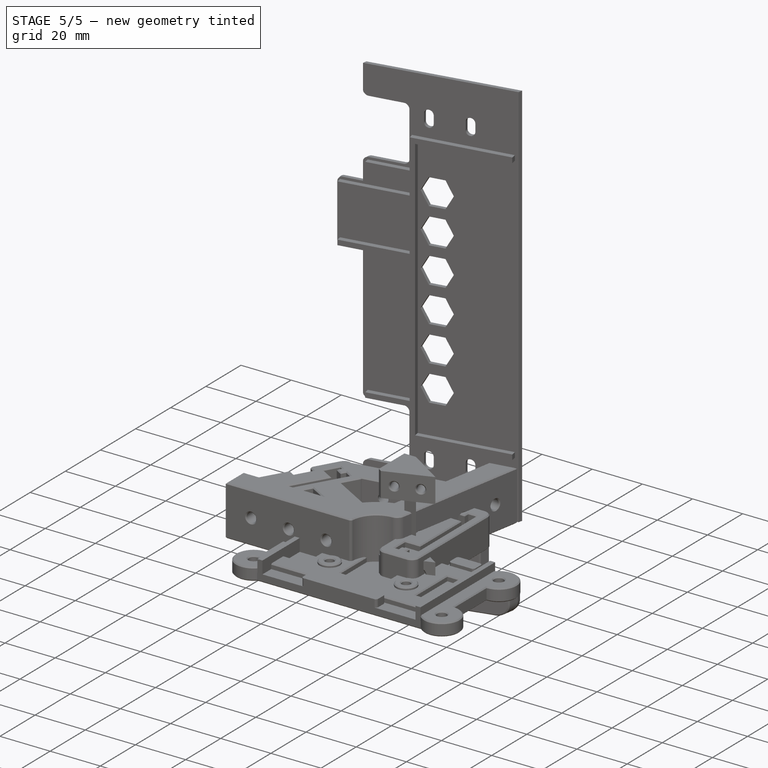
[diagram: stage 5 of 5 — iso view after this stage's code; geometry added in this stage tinted green]
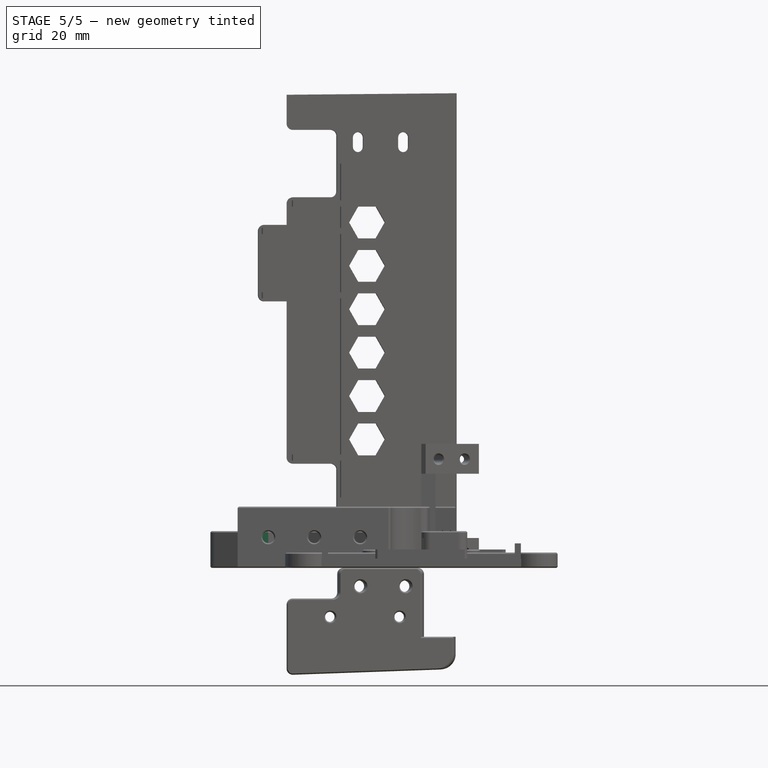
[diagram: stage 5 of 5 — front view after this stage's code; geometry added in this stage tinted green]
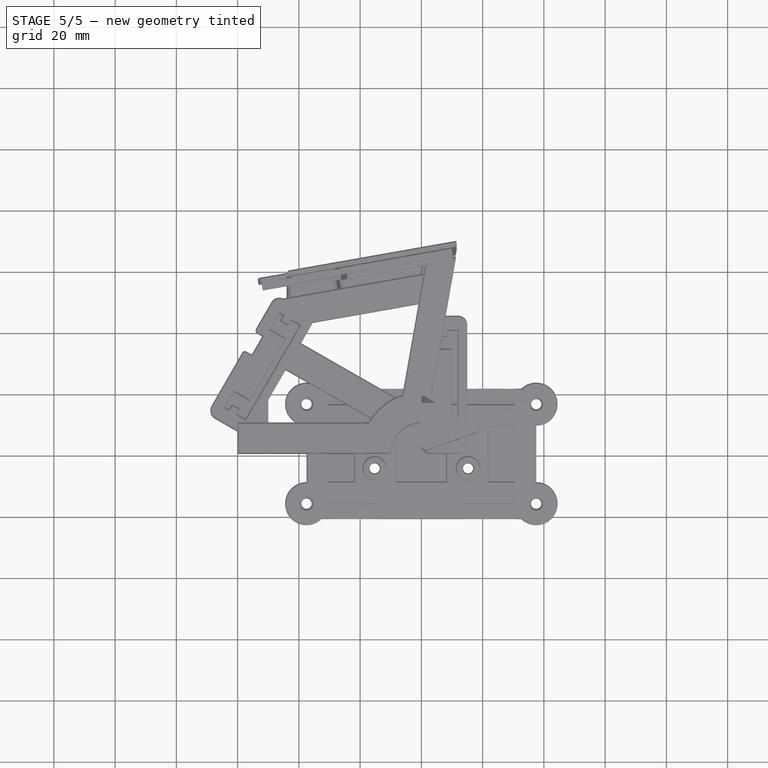
[diagram: stage 5 of 5 — top view after this stage's code; geometry added in this stage tinted green]
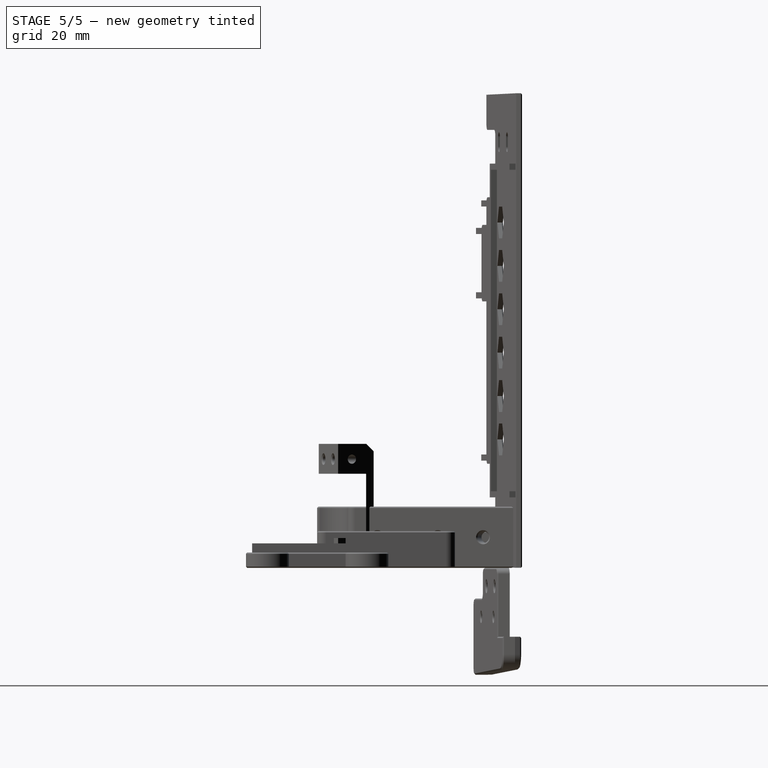
[diagram: stage 5 of 5 — right view after this stage's code; geometry added in this stage tinted green]
FEATURE [Sketcher::SketchObject] Sketch
  FullyConstrained = true
  MapMode = 5
  Support = -> [XY_Plane]
  sketch-geometry (10):
    g0: ArcOfCircle CenterX=0 CenterY=0 CenterZ=0 NormalX=0 NormalY=0 NormalZ=1 AngleXU=0 Radius=10 StartAngle=1.39626 EndAngle=3.14159
    g1: LineSegment StartX=1.73648 StartY=9.84808 StartZ=0 EndX=11.2871 EndY=64.0125 EndZ=0
    g2: LineSegment StartX=-10 StartY=1.2e-15 StartZ=0 EndX=-60 EndY=0 EndZ=0
    g3: LineSegment StartX=1.73648 StartY=9.84808 StartZ=0 EndX=2e-16 EndY=0 EndZ=0
    g4: LineSegment StartX=-60 StartY=0 StartZ=0 EndX=-60 EndY=10 EndZ=0
    g5: LineSegment StartX=11.2871 StartY=64.0125 StartZ=0 EndX=1.43905 EndY=62.276 EndZ=0
    g6: LineSegment StartX=-60 StartY=10 StartZ=0 EndX=-17.3205 EndY=10 EndZ=0
    g7: LineSegment StartX=1.43905 StartY=62.276 StartZ=0 EndX=-6.18841 EndY=19.0185 EndZ=0
    g8: LineSegment StartX=-10 StartY=1.2e-15 StartZ=0 EndX=0 EndY=0 EndZ=0
    g9: ArcOfCircle CenterX=0 CenterY=0 CenterZ=0 NormalX=0 NormalY=0 NormalZ=1 AngleXU=0 Radius=20 StartAngle=1.88538 EndAngle=2.61799
  constraints (28):
    c: Coincident(g0,g-1)
    c: PointOnObject(g0,g-1)
    c: Radius(g0) = 10
    c: Coincident(g1,g0)
    c: Coincident(g2,g0)
    c: PointOnObject(g2,g-1)
    c: Coincident(g3,g0)
    c: Coincident(g3,g0)
    c: Parallel(g3,g1)
    c: Distance(g1) = 55
    c: Distance(g2) = 50
    c: Coincident(g4,g2)
    c: Vertical(g4)
    c: Coincident(g5,g1)
    c: Distance(g5) = 10
    c: Distance(g4) = 10
    c: Coincident(g6,g4)
    c: Horizontal(g6)
    c: Coincident(g7,g5)
    c: Parallel(g7,g1)
    c: Coincident(g8,g0)
    c: Coincident(g8,g0)
    c: Angle(g3,g8) = 1.74533
    c: Coincident(g9,g0)
    c: Radius(g9) = 20
    c: Coincident(g6,g9)
    c: Coincident(g7,g9)
    c: Angle(g5,g1) = 1.22173
FEATURE [PartDesign::Pad] Pad
  Direction = (1,1,1)
  Length = 20
  Length2 = 100
  Profile = -> Sketch
  Type = 0
FEATURE [Sketcher::SketchObject] Sketch001
  FullyConstrained = true
  MapMode = 5
  Placement = pos=(0,1.4e-15,0) rot=(1,0,0;1.5708rad)
  Support = -> [Pad]
  expr: Constraints[6] = <<args>>.thread_insert_radius
  expr: Constraints[7] = <<args>>.thread_insert_radius
  expr: Constraints[8] = <<args>>.thread_insert_radius
  sketch-geometry (3):
    g0: Circle CenterX=-50 CenterY=10 CenterZ=0 NormalX=0 NormalY=0 NormalZ=1 AngleXU=0 Radius=1.9
    g1: Circle CenterX=-35 CenterY=10 CenterZ=0 NormalX=0 NormalY=0 NormalZ=1 AngleXU=0 Radius=1.9
    g2: Circle CenterX=-20 CenterY=10 CenterZ=0 NormalX=0 NormalY=0 NormalZ=1 AngleXU=0 Radius=1.9
  constraints (9):
    c: Horizontal(g0,g1)
    c: Horizontal(g1,g2)
    c: DistanceY(g-1,g2) = 10
    c: DistanceX(g2,g-1) = 20
    c: DistanceX(g1,g2) = 15
    c: DistanceX(g0,g1) = 15
    c: Radius(g0) = 1.9
    c: Radius(g1) = 1.9
    c: Radius(g2) = 1.9
FEATURE [PartDesign::Pocket] Pocket
  BaseFeature = -> Pad
  Length = 10
  Length2 = 100
  Profile = -> Sketch001
  Type = 0
FEATURE [Sketcher::SketchObject] Sketch002
  FullyConstrained = true
  MapMode = 5
  Placement = pos=(-2e-16,0,0) rot=(0.6444,0.540716,0.540716;1.99673rad)
  Support = -> [Pocket]
  expr: Constraints[6] = <<args>>.thread_insert_radius
  expr: Constraints[7] = <<args>>.thread_insert_radius
  expr: Constraints[8] = <<args>>.thread_insert_radius
  sketch-geometry (3):
    g0: Circle CenterX=20 CenterY=10 CenterZ=0 NormalX=0 NormalY=0 NormalZ=1 AngleXU=0 Radius=1.9
    g1: Circle CenterX=40 CenterY=10 CenterZ=0 NormalX=0 NormalY=0 NormalZ=1 AngleXU=0 Radius=1.9
    g2: Circle CenterX=55 CenterY=10 CenterZ=0 NormalX=0 NormalY=0 NormalZ=1 AngleXU=0 Radius=1.9
  constraints (9):
    c: Horizontal(g0,g1)
    c: Horizontal(g1,g2)
    c: DistanceY(g-1,g0) = 10
    c: DistanceX(g-1,g0) = 20
    c: DistanceX(g0,g1) = 20
    c: DistanceX(g1,g2) = 15
    c: Radius(g0) = 1.9
    c: Radius(g1) = 1.9
    c: Radius(g2) = 1.9
FEATURE [PartDesign::Pocket] Pocket001
  BaseFeature = -> Pocket
  Length = 5
  Length2 = 100
  Profile = -> Sketch002
  Type = 1
FEATURE [PartDesign::Fillet] Fillet
  Base = -> Pocket001 [Edge1]
  BaseFeature = -> Pocket001
  Radius = 3
  SupportTransform = false
FEATURE [PartDesign::Fillet] Fillet001
  Base = -> Fillet [Edge3]
  BaseFeature = -> Fillet
  Radius = 1
  SupportTransform = false
FEATURE [PartDesign::Chamfer] Chamfer
  Angle = 45
  Base = -> Fillet001 [Face5,Face2,Edge28,Edge27,Edge26,Edge30,Edge31,Edge32,Edge41,Edge42,Edge40,Edge38,Edge37,Edge36]
  BaseFeature = -> Fillet001
  ChamferType = 0
  FlipDirection = false
  Size = 0.4
  Size2 = 1
  SupportTransform = false
FEATURE [Sketcher::SketchObject] Sketch006
  FullyConstrained = true
  MapMode = 5
  Support = -> [XY_Plane002]
  sketch-geometry (5):
    g0: LineSegment StartX=-60 StartY=9 StartZ=0 EndX=-50 EndY=9 EndZ=0
    g1: LineSegment StartX=-60 StartY=9 StartZ=0 EndX=-60 EndY=10 EndZ=0
    g2: LineSegment StartX=-60 StartY=10 StartZ=0 EndX=-57 EndY=10 EndZ=0
    g3: LineSegment StartX=-50 StartY=9 StartZ=0 EndX=-50 EndY=22 EndZ=0
    g4: LineSegment StartX=-50 StartY=22 StartZ=0 EndX=-57 EndY=10 EndZ=0
  constraints (15):
    c: Horizontal(g0)
    c: DistanceX(g0,g0) = 10
    c: DistanceX(g0,g-1) = 50
    c: DistanceY(g-1,g0) = 9
    c: Coincident(g0,g1)
    c: Vertical(g1)
    c: Coincident(g1,g2)
    c: Horizontal(g2)
    c: Coincident(g0,g3)
    c: Vertical(g3)
    c: Coincident(g3,g4)
    c: Coincident(g4,g2)
    c: DistanceY(g1,g1) = 1
    c: DistanceX(g2,g2) = 3
    c: DistanceY(g-1,g3) = 22
FEATURE [PartDesign::Pad] Pad002
  Direction = (1,1,1)
  Length = 12
  Length2 = 100
  Profile = -> Sketch006
  Type = 0
FEATURE [PartDesign::Chamfer] Chamfer002
  Angle = 45
  Base = -> Pad002 [Face6,Face7]
  BaseFeature = -> Pad002
  ChamferType = 0
  FlipDirection = false
  Size = 0.4
  Size2 = 1
  SupportTransform = false
FEATURE [PartDesign::Chamfer] Chamfer003
  Angle = 45
  Base = -> Pad003 [Face6,Face5]
  BaseFeature = -> Pad003
  ChamferType = 0
  FlipDirection = false
  Size = 0.4
  Size2 = 1
  SupportTransform = false
FEATURE [Sketcher::SketchObject] Sketch009
  FullyConstrained = true
  MapMode = 5
  Placement = pos=(-10.0171,56.8099,0) rot=(-0.061746,0.705758,0.705758;3.26493rad)
  Support = -> [Chamfer003]
  expr: Constraints[5] = <<args>>.thread_insert_radius
  expr: Constraints[4] = <<args>>.thread_insert_radius
  sketch-geometry (2):
    g0: Circle CenterX=-3 CenterY=6 CenterZ=0 NormalX=0 NormalY=0 NormalZ=1 AngleXU=0 Radius=1.9
    g1: Circle CenterX=20 CenterY=6 CenterZ=0 NormalX=0 NormalY=0 NormalZ=1 AngleXU=0 Radius=1.9
  constraints (6):
    c: Horizontal(g0,g1)
    c: DistanceY(g-1,g0) = 6
    c: DistanceX(g0,g-1) = 3
    c: DistanceX(g-1,g1) = 20
    c: Radius(g0) = 1.9
    c: Radius(g1) = 1.9
FEATURE [PartDesign::Pocket] Pocket004
  BaseFeature = -> Chamfer003
  Length = 5
  Length2 = 100
  Profile = -> Sketch009
  Type = 1
FEATURE [PartDesign::Chamfer] Chamfer005
  Angle = 45
  Base = -> Pocket004 [Edge20,Edge19]
  BaseFeature = -> Pocket004
  ChamferType = 0
  FlipDirection = false
  Size = 0.4
  Size2 = 1
  SupportTransform = false
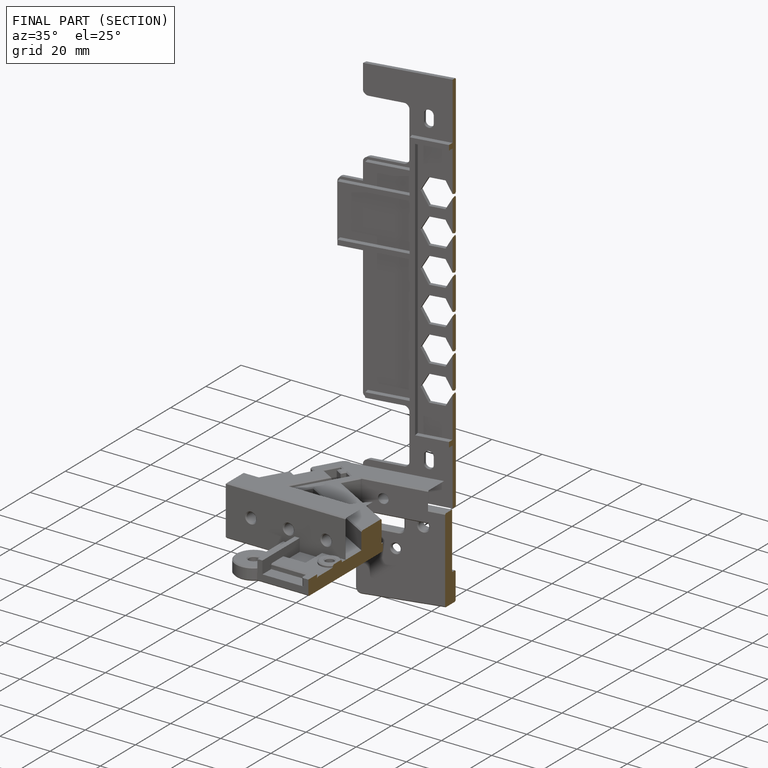
[diagram: finished part — half-section view (interior)]
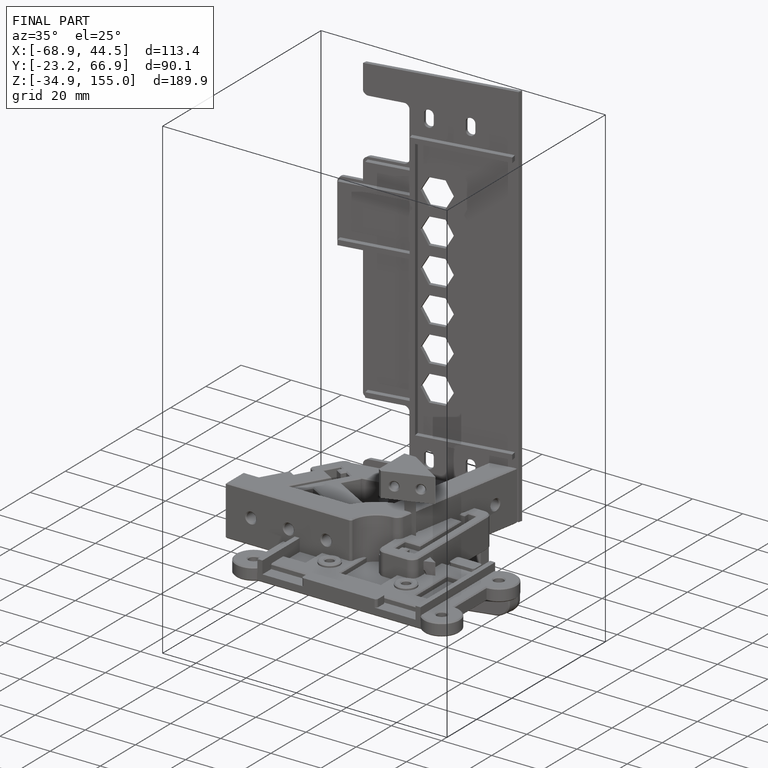
[diagram: finished part — iso view with bounding-box wireframe]
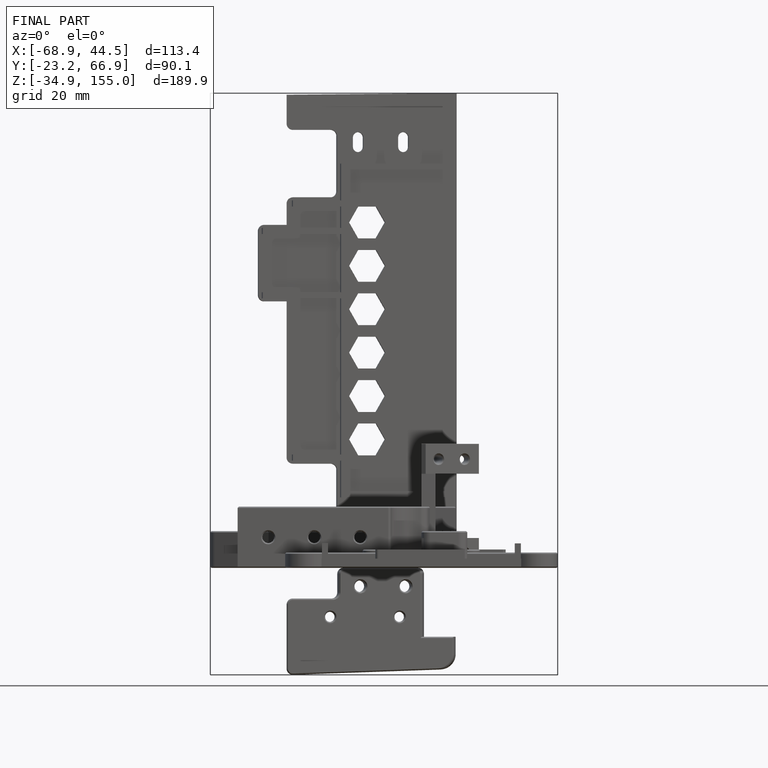
[diagram: finished part — front view with bounding-box wireframe]
